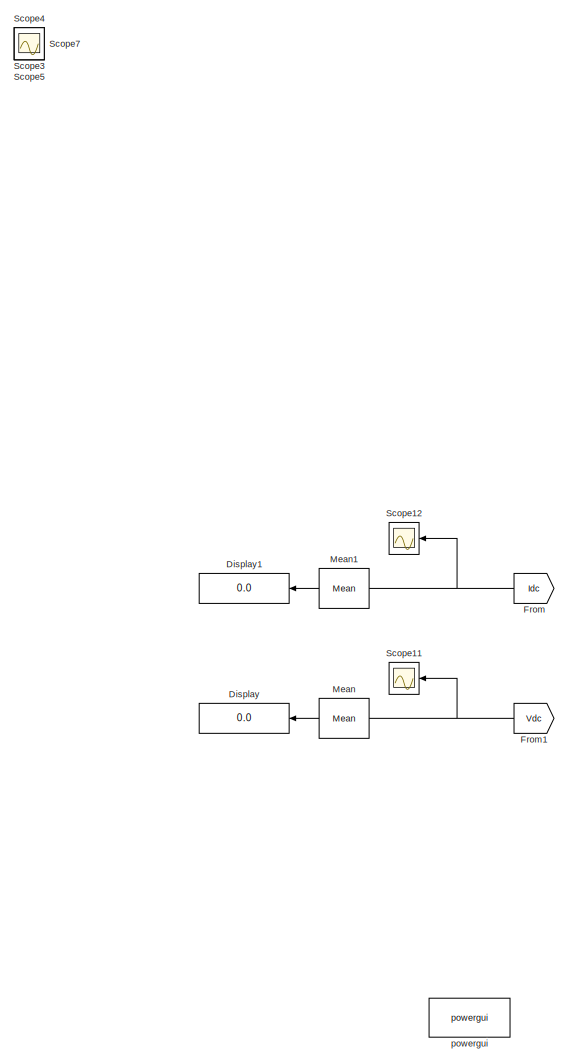
[diagram: root canvas - part 1/2, left side, full height]
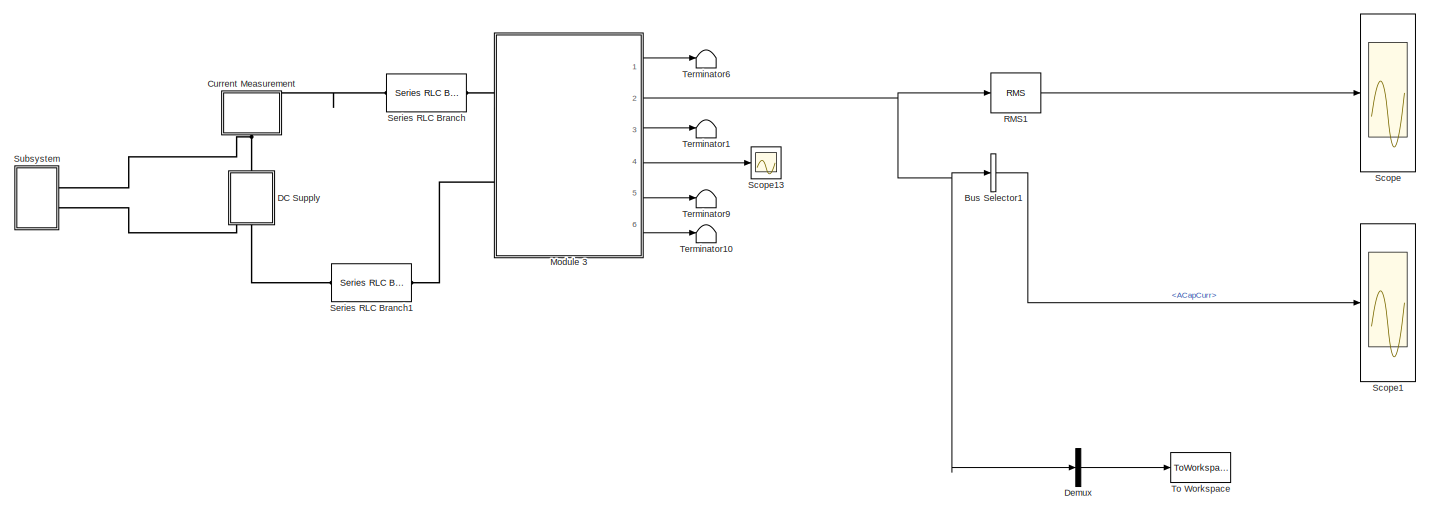
[diagram: root canvas - part 2/2, bottom center region]
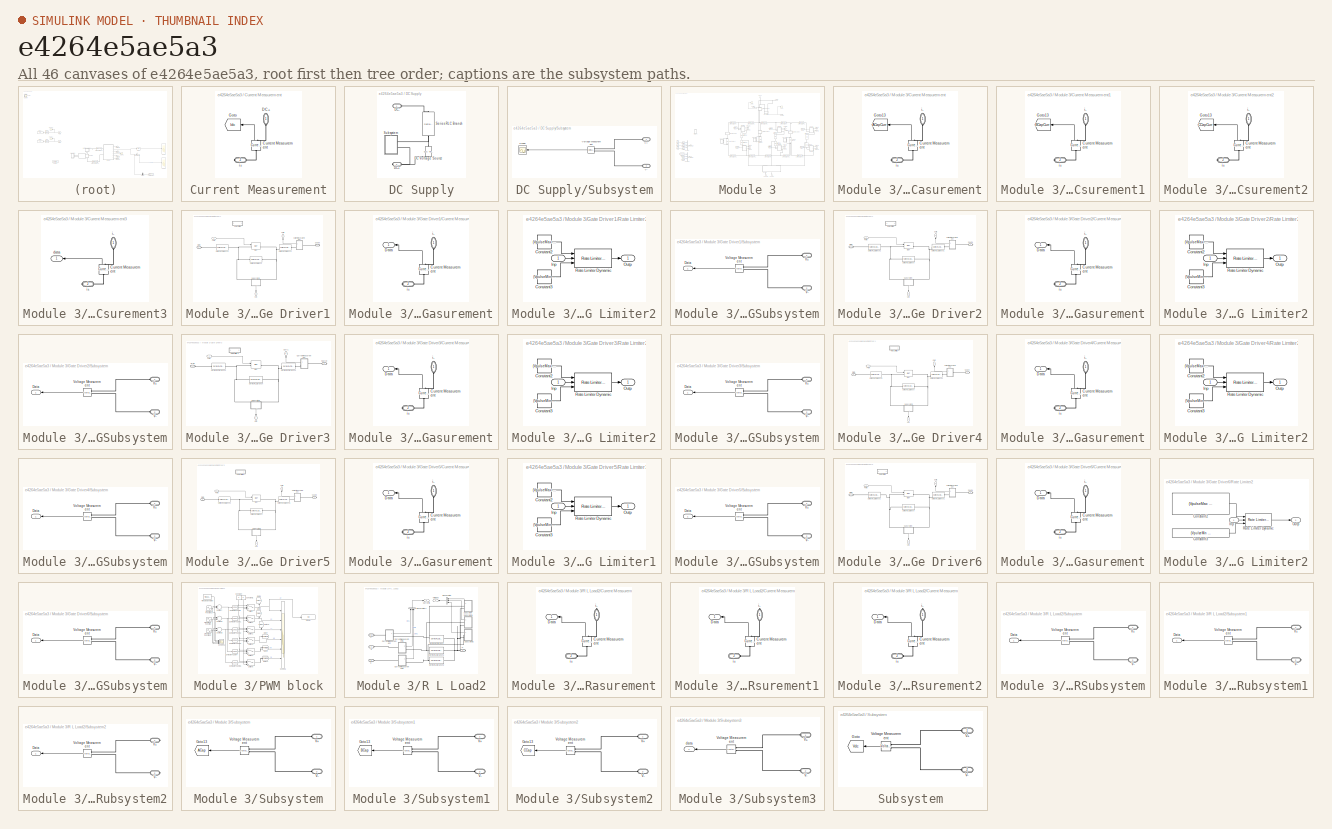
[diagram: thumbnail index - all 46 canvases of the model, root first then tree order]
MODEL slx_e4264e5ae5a3
KIND model
CONFIG AbsTol = auto
CONFIG EnableMultiTasking = off
CONFIG FixedStep = SampleTime*1e-2
CONFIG MaxStep = auto
CONFIG MinStep = SampleTime*1e-2
CONFIG RelTol = 1e-3
CONFIG SampleTimeConstraint = Unconstrained
CONFIG Solver = VariableStepAuto
CONFIG SolverName = VariableStepAuto
CONFIG StartTime = 0.0
CONFIG StopTime = Tfinal
BLOCK [BusSelector] Bus Selector1
  OutputAsBus = off
  OutputSignals = ACapCurr
  Ports = [1, 1]
BLOCK [SubSystem] Current Measurement
  Ports = [0, 0, 0, 0, 0, 1, 1]
  RequestExecContextInheritance = off
BLOCK [Reference] Current Measurement/Current Measurement  REF=powerlib/Measurements/Current Measurement
  Ports = [0, 1, 0, 0, 0, 1, 1]
  SourceBlock = powerlib/Measurements/Current Measurement
  SourceProductBaseCode = PS
  SourceProductName = Simscape Power Systems
  SourceType = Current Measurement
  UserDataPersistent = on
BLOCK [PMIOPort] Current Measurement/DC+
  Side = Left
BLOCK [Goto] Current Measurement/Goto
  GotoTag = Idc
  TagVisibility = global
BLOCK [PMIOPort] Current Measurement/i+
  Port = 2
  Side = Right
BLOCK [SubSystem] DC Supply
  Ports = [0, 0, 0, 0, 0, 1, 1]
  RequestExecContextInheritance = off
BLOCK [Reference] DC Supply/DC Voltage Source  REF=powerlib/Electrical
Sources/DC Voltage Source
  Ports = [0, 0, 0, 0, 0, 1, 1]
  SourceBlock = powerlib/Electrical\nSources/DC Voltage Source
  SourceProductBaseCode = PS
  SourceProductName = Simscape Power Systems
  SourceType = DC Voltage Source
BLOCK [PMIOPort] DC Supply/DC+
  Port = 2
  Side = Right
BLOCK [PMIOPort] DC Supply/DC-
  Side = Left
BLOCK [Reference] DC Supply/Series RLC Branch  REF=powerlib/Elements/Series RLC Branch
  Ports = [0, 0, 0, 0, 0, 1, 1]
  SourceBlock = powerlib/Elements/Series RLC Branch
  SourceProductBaseCode = PS
  SourceProductName = Simscape Power Systems
  SourceType = Series RLC Branch
BLOCK [SubSystem] DC Supply/Subsystem
  Ports = [0, 0, 0, 0, 0, 2]
  RequestExecContextInheritance = off
BLOCK [Scope] DC Supply/Subsystem/Scope
  Floating = off
  NumInputPorts = 1
  Ports = [1]
  ScopeSpecificationString = Simulink.scopes.TimeScopeBlockCfg('CurrentConfiguration', extmgr.ConfigurationSet(extmgr.Configuration('Core','General UI',true),extmgr.Configuration('Core','Source UI',true),extmgr.Configuration('Sources','WiredSimulink',true,'DataLoggingVariableName','ScopeData3'),extmgr.Configuration('Visuals','Time Domain',true,'SerializedDisplays',{struct('MinYLimReal','-600.00000','MaxYLimReal','-400.00000',...<+1394ch>
BLOCK [PMIOPort] DC Supply/Subsystem/V+
  Side = Left
BLOCK [PMIOPort] DC Supply/Subsystem/V-
  Port = 2
  Side = Left
BLOCK [Reference] DC Supply/Subsystem/Voltage Measurement  REF=powerlib/Measurements/Voltage Measurement
  Ports = [0, 1, 0, 0, 0, 2]
  SourceBlock = powerlib/Measurements/Voltage Measurement
  SourceProductBaseCode = PS
  SourceProductName = Simscape Power Systems
  SourceType = Voltage Measurement
  UserDataPersistent = on
BLOCK [Demux] Demux
  DisplayOption = bar
  Outputs = 3
  Ports = [1, 3]
BLOCK [Display] Display
  Decimation = 1
  Ports = [1]
BLOCK [Display] Display1
  Decimation = 1
  Ports = [1]
BLOCK [From] From
  GotoTag = Idc
  TagVisibility = global
BLOCK [From] From1
  GotoTag = Vdc
  TagVisibility = global
BLOCK [Reference] Mean  REF=powerlib_meascontrol/Measurements/Mean
  Ports = [1, 1]
  SourceBlock = powerlib_meascontrol/Measurements/Mean
  SourceProductBaseCode = PS
  SourceProductName = Simscape Power Systems
  SourceType = Mean
BLOCK [Reference] Mean1  REF=powerlib_meascontrol/Measurements/Mean
  Ports = [1, 1]
  SourceBlock = powerlib_meascontrol/Measurements/Mean
  SourceProductBaseCode = PS
  SourceProductName = Simscape Power Systems
  SourceType = Mean
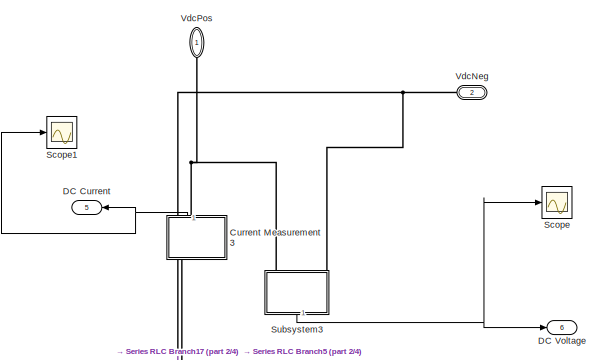
[diagram: Module 3 - part 1/4, top center region]
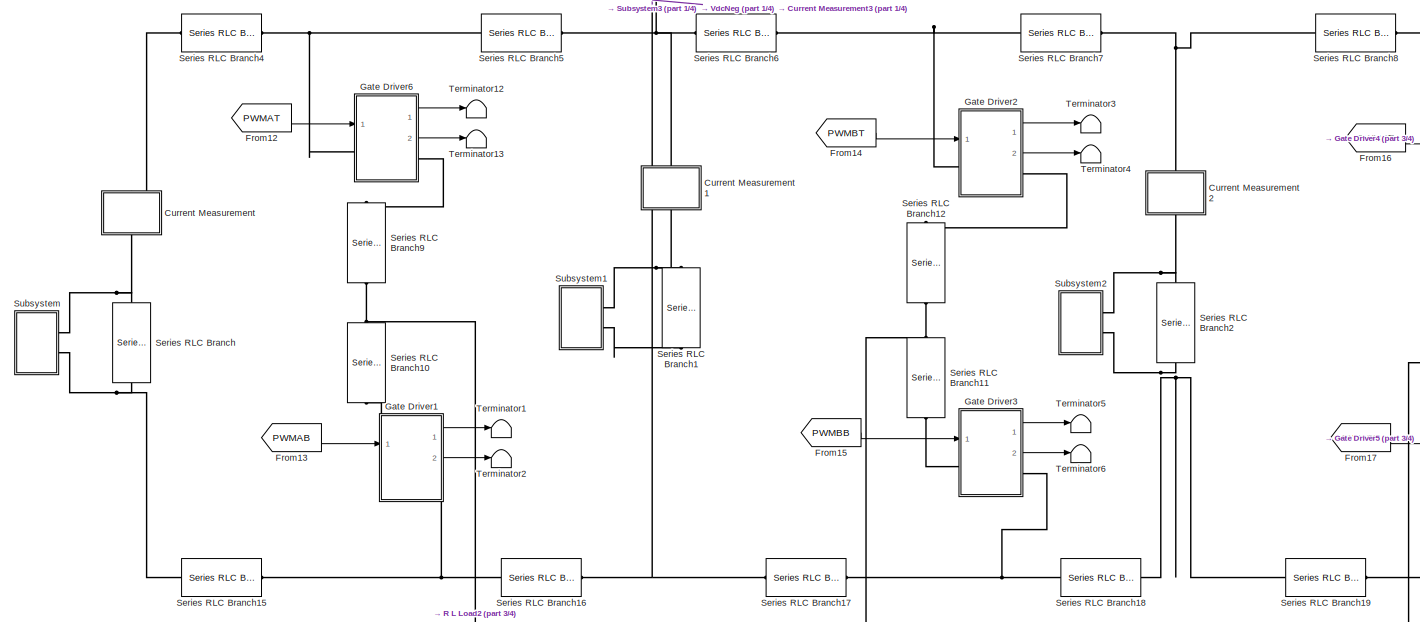
[diagram: Module 3 - part 2/4, central region]
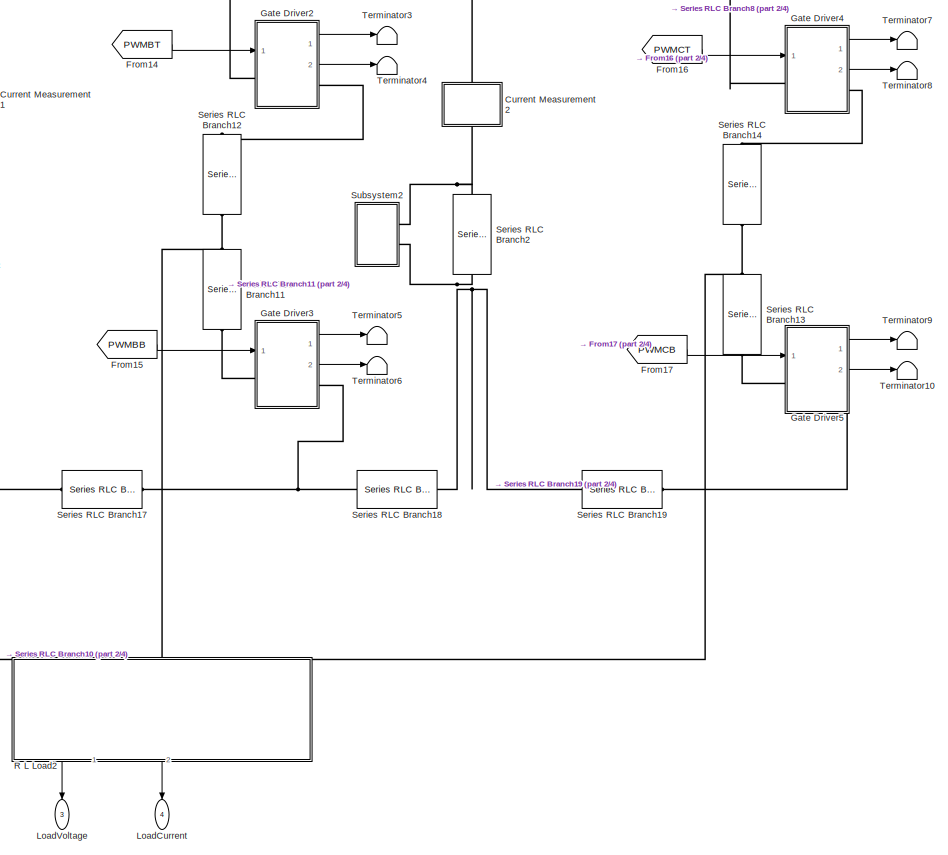
[diagram: Module 3 - part 3/4, bottom right region]
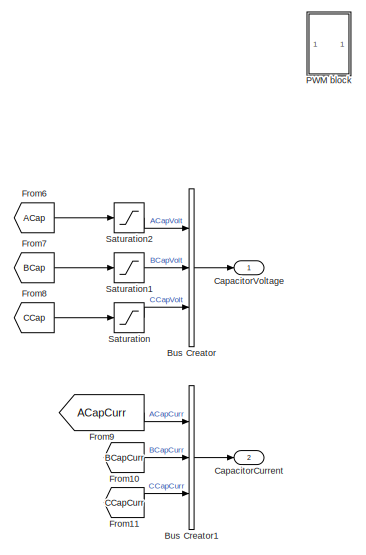
[diagram: Module 3 - part 4/4, middle left region]
BLOCK [SubSystem] Module 3
  Ports = [0, 6, 0, 0, 0, 2]
  RequestExecContextInheritance = off
BLOCK [BusCreator] Module 3/Bus Creator
  DisplayOption = bar
  InheritFromInputs = on
  Inputs = 3
  Ports = [3, 1]
BLOCK [BusCreator] Module 3/Bus Creator1
  DisplayOption = bar
  InheritFromInputs = on
  Inputs = 3
  Ports = [3, 1]
BLOCK [Outport] Module 3/CapacitorCurrent
  IconDisplay = Port number
  Port = 2
BLOCK [Outport] Module 3/CapacitorVoltage
  IconDisplay = Port number
BLOCK [SubSystem] Module 3/Current Measurement
  Ports = [0, 0, 0, 0, 0, 1, 1]
  RequestExecContextInheritance = off
BLOCK [Reference] Module 3/Current Measurement/Current Measurement  REF=powerlib/Measurements/Current Measurement
  Ports = [0, 1, 0, 0, 0, 1, 1]
  SourceBlock = powerlib/Measurements/Current Measurement
  SourceProductBaseCode = PS
  SourceProductName = Simscape Power Systems
  SourceType = Current Measurement
  UserDataPersistent = on
BLOCK [Goto] Module 3/Current Measurement/Goto13
  GotoTag = ACapCurr
  TagVisibility = global
BLOCK [PMIOPort] Module 3/Current Measurement/i+
  Port = 2
  Side = Right
BLOCK [PMIOPort] Module 3/Current Measurement/i-
  Side = Left
BLOCK [SubSystem] Module 3/Current Measurement1
  Ports = [0, 0, 0, 0, 0, 1, 1]
  RequestExecContextInheritance = off
BLOCK [Reference] Module 3/Current Measurement1/Current Measurement  REF=powerlib/Measurements/Current Measurement
  Ports = [0, 1, 0, 0, 0, 1, 1]
  SourceBlock = powerlib/Measurements/Current Measurement
  SourceProductBaseCode = PS
  SourceProductName = Simscape Power Systems
  SourceType = Current Measurement
  UserDataPersistent = on
BLOCK [Goto] Module 3/Current Measurement1/Goto13
  GotoTag = BCapCurr
  TagVisibility = global
BLOCK [PMIOPort] Module 3/Current Measurement1/i+
  Port = 2
  Side = Right
BLOCK [PMIOPort] Module 3/Current Measurement1/i-
  Side = Left
BLOCK [SubSystem] Module 3/Current Measurement2
  Ports = [0, 0, 0, 0, 0, 1, 1]
  RequestExecContextInheritance = off
BLOCK [Reference] Module 3/Current Measurement2/Current Measurement  REF=powerlib/Measurements/Current Measurement
  Ports = [0, 1, 0, 0, 0, 1, 1]
  SourceBlock = powerlib/Measurements/Current Measurement
  SourceProductBaseCode = PS
  SourceProductName = Simscape Power Systems
  SourceType = Current Measurement
  UserDataPersistent = on
BLOCK [Goto] Module 3/Current Measurement2/Goto13
  GotoTag = CCapCurr
  TagVisibility = global
BLOCK [PMIOPort] Module 3/Current Measurement2/i+
  Port = 2
  Side = Right
BLOCK [PMIOPort] Module 3/Current Measurement2/i-
  Side = Left
BLOCK [SubSystem] Module 3/Current Measurement3
  Ports = [0, 1, 0, 0, 0, 1, 1]
  RequestExecContextInheritance = off
BLOCK [Reference] Module 3/Current Measurement3/Current Measurement  REF=powerlib/Measurements/Current Measurement
  Ports = [0, 1, 0, 0, 0, 1, 1]
  SourceBlock = powerlib/Measurements/Current Measurement
  SourceProductBaseCode = PS
  SourceProductName = Simscape Power Systems
  SourceType = Current Measurement
  UserDataPersistent = on
BLOCK [Outport] Module 3/Current Measurement3/data
  IconDisplay = Port number
BLOCK [PMIOPort] Module 3/Current Measurement3/i+
  Port = 2
  Side = Right
BLOCK [PMIOPort] Module 3/Current Measurement3/i-
  Side = Left
BLOCK [Outport] Module 3/DC Current
  IconDisplay = Port number
  Port = 5
BLOCK [Outport] Module 3/DC Voltage
  IconDisplay = Port number
  Port = 6
BLOCK [From] Module 3/From10
  GotoTag = BCapCurr
  TagVisibility = global
BLOCK [From] Module 3/From11
  GotoTag = CCapCurr
  TagVisibility = global
BLOCK [From] Module 3/From12
  GotoTag = PWMAT
  TagVisibility = global
BLOCK [From] Module 3/From13
  GotoTag = PWMAB
  TagVisibility = global
BLOCK [From] Module 3/From14
  GotoTag = PWMBT
  TagVisibility = global
BLOCK [From] Module 3/From15
  GotoTag = PWMBB
  TagVisibility = global
BLOCK [From] Module 3/From16
  GotoTag = PWMCT
  TagVisibility = global
BLOCK [From] Module 3/From17
  GotoTag = PWMCB
  TagVisibility = global
BLOCK [From] Module 3/From6
  GotoTag = ACap
  TagVisibility = global
BLOCK [From] Module 3/From7
  GotoTag = BCap
  TagVisibility = global
BLOCK [From] Module 3/From8
  GotoTag = CCap
  TagVisibility = global
BLOCK [From] Module 3/From9
  GotoTag = ACapCurr
  TagVisibility = global
BLOCK [SubSystem] Module 3/Gate Driver1
  Ports = [1, 2, 0, 0, 0, 1, 1]
  RequestExecContextInheritance = off
BLOCK [Outport] Module 3/Gate Driver1/Curr1
  IconDisplay = Port number
  Port = 2
BLOCK [SubSystem] Module 3/Gate Driver1/Current Measurement
  Ports = [0, 1, 0, 0, 0, 1, 1]
  RequestExecContextInheritance = off
BLOCK [Reference] Module 3/Gate Driver1/Current Measurement/Current Measurement  REF=powerlib/Measurements/Current Measurement
  Ports = [0, 1, 0, 0, 0, 1, 1]
  SourceBlock = powerlib/Measurements/Current Measurement
  SourceProductBaseCode = PS
  SourceProductName = Simscape Power Systems
  SourceType = Current Measurement
  UserDataPersistent = on
BLOCK [Outport] Module 3/Gate Driver1/Current Measurement/Data
  IconDisplay = Port number
BLOCK [PMIOPort] Module 3/Gate Driver1/Current Measurement/i+
  Port = 2
  Side = Right
BLOCK [PMIOPort] Module 3/Gate Driver1/Current Measurement/i-
  Side = Left
BLOCK [PMIOPort] Module 3/Gate Driver1/Drain
  Port = 2
  Side = Left
BLOCK [Reference] Module 3/Gate Driver1/IGBT  REF=powerlib/Power
Electronics/IGBT
  Ports = [1, 1, 0, 0, 0, 1, 1]
  SourceBlock = powerlib/Power\nElectronics/IGBT
  SourceProductBaseCode = PS
  SourceProductName = Simscape Power Systems
  SourceType = IGBT
BLOCK [Inport] Module 3/Gate Driver1/PWM
  IconDisplay = Port number
BLOCK [SubSystem] Module 3/Gate Driver1/Rate Limiter2
  Ports = [1, 1]
  RequestExecContextInheritance = off
BLOCK [Constant] Module 3/Gate Driver1/Rate Limiter2/Constant2
  Value = (VpulseMax - VpulseMin)/1e-9
BLOCK [Constant] Module 3/Gate Driver1/Rate Limiter2/Constant3
  Value = (VpulseMin - VpulseMax)/1e-9
BLOCK [Inport] Module 3/Gate Driver1/Rate Limiter2/Inp
  IconDisplay = Port number
BLOCK [Outport] Module 3/Gate Driver1/Rate Limiter2/Outp
  IconDisplay = Port number
BLOCK [Reference] Module 3/Gate Driver1/Rate Limiter2/Rate Limiter Dynamic  REF=simulink/Discontinuities/Rate Limiter
Dynamic
  Ports = [3, 1]
  SourceBlock = simulink/Discontinuities/Rate Limiter\nDynamic
  SourceProductBaseCode = SL
  SourceProductName = Simulink
  SourceType = Rate Limiter Dynamic
BLOCK [Reference] Module 3/Gate Driver1/Series RLC Branch  REF=powerlib/Elements/Series RLC Branch
  Ports = [0, 0, 0, 0, 0, 1, 1]
  SourceBlock = powerlib/Elements/Series RLC Branch
  SourceProductBaseCode = PS
  SourceProductName = Simscape Power Systems
  SourceType = Series RLC Branch
BLOCK [Reference] Module 3/Gate Driver1/Series RLC Branch1  REF=powerlib/Elements/Series RLC Branch
  Ports = [0, 0, 0, 0, 0, 1, 1]
  SourceBlock = powerlib/Elements/Series RLC Branch
  SourceProductBaseCode = PS
  SourceProductName = Simscape Power Systems
  SourceType = Series RLC Branch
BLOCK [Reference] Module 3/Gate Driver1/Series RLC Branch2  REF=powerlib/Elements/Series RLC Branch
  Ports = [0, 0, 0, 0, 0, 1, 1]
  SourceBlock = powerlib/Elements/Series RLC Branch
  SourceProductBaseCode = PS
  SourceProductName = Simscape Power Systems
  SourceType = Series RLC Branch
BLOCK [PMIOPort] Module 3/Gate Driver1/Source
  Side = Right
BLOCK [SubSystem] Module 3/Gate Driver1/Subsystem
  Ports = [0, 1, 0, 0, 0, 2]
  RequestExecContextInheritance = off
BLOCK [Outport] Module 3/Gate Driver1/Subsystem/Data
  IconDisplay = Port number
BLOCK [PMIOPort] Module 3/Gate Driver1/Subsystem/V+
  Side = Left
BLOCK [PMIOPort] Module 3/Gate Driver1/Subsystem/V-
  Port = 2
  Side = Left
BLOCK [Reference] Module 3/Gate Driver1/Subsystem/Voltage Measurement  REF=powerlib/Measurements/Voltage Measurement
  Ports = [0, 1, 0, 0, 0, 2]
  SourceBlock = powerlib/Measurements/Voltage Measurement
  SourceProductBaseCode = PS
  SourceProductName = Simscape Power Systems
  SourceType = Voltage Measurement
  UserDataPersistent = on
BLOCK [Outport] Module 3/Gate Driver1/Volt
  IconDisplay = Port number
BLOCK [SubSystem] Module 3/Gate Driver2
  Ports = [1, 2, 0, 0, 0, 1, 1]
  RequestExecContextInheritance = off
BLOCK [Outport] Module 3/Gate Driver2/Curr1
  IconDisplay = Port number
  Port = 2
BLOCK [SubSystem] Module 3/Gate Driver2/Current Measurement
  Ports = [0, 1, 0, 0, 0, 1, 1]
  RequestExecContextInheritance = off
BLOCK [Reference] Module 3/Gate Driver2/Current Measurement/Current Measurement  REF=powerlib/Measurements/Current Measurement
  Ports = [0, 1, 0, 0, 0, 1, 1]
  SourceBlock = powerlib/Measurements/Current Measurement
  SourceProductBaseCode = PS
  SourceProductName = Simscape Power Systems
  SourceType = Current Measurement
  UserDataPersistent = on
BLOCK [Outport] Module 3/Gate Driver2/Current Measurement/Data
  IconDisplay = Port number
BLOCK [PMIOPort] Module 3/Gate Driver2/Current Measurement/i+
  Port = 2
  Side = Right
BLOCK [PMIOPort] Module 3/Gate Driver2/Current Measurement/i-
  Side = Left
BLOCK [PMIOPort] Module 3/Gate Driver2/Drain
  Port = 2
  Side = Left
BLOCK [Reference] Module 3/Gate Driver2/IGBT  REF=powerlib/Power
Electronics/IGBT
  Ports = [1, 1, 0, 0, 0, 1, 1]
  SourceBlock = powerlib/Power\nElectronics/IGBT
  SourceProductBaseCode = PS
  SourceProductName = Simscape Power Systems
  SourceType = IGBT
BLOCK [Inport] Module 3/Gate Driver2/PWM
  IconDisplay = Port number
BLOCK [SubSystem] Module 3/Gate Driver2/Rate Limiter2
  Ports = [1, 1]
  RequestExecContextInheritance = off
BLOCK [Constant] Module 3/Gate Driver2/Rate Limiter2/Constant2
  Value = (VpulseMax - VpulseMin)/1e-9
BLOCK [Constant] Module 3/Gate Driver2/Rate Limiter2/Constant3
  Value = (VpulseMin - VpulseMax)/1e-9
BLOCK [Inport] Module 3/Gate Driver2/Rate Limiter2/Inp
  IconDisplay = Port number
BLOCK [Outport] Module 3/Gate Driver2/Rate Limiter2/Outp
  IconDisplay = Port number
BLOCK [Reference] Module 3/Gate Driver2/Rate Limiter2/Rate Limiter Dynamic  REF=simulink/Discontinuities/Rate Limiter
Dynamic
  Ports = [3, 1]
  SourceBlock = simulink/Discontinuities/Rate Limiter\nDynamic
  SourceProductBaseCode = SL
  SourceProductName = Simulink
  SourceType = Rate Limiter Dynamic
BLOCK [Reference] Module 3/Gate Driver2/Series RLC Branch  REF=powerlib/Elements/Series RLC Branch
  Ports = [0, 0, 0, 0, 0, 1, 1]
  SourceBlock = powerlib/Elements/Series RLC Branch
  SourceProductBaseCode = PS
  SourceProductName = Simscape Power Systems
  SourceType = Series RLC Branch
BLOCK [Reference] Module 3/Gate Driver2/Series RLC Branch1  REF=powerlib/Elements/Series RLC Branch
  Ports = [0, 0, 0, 0, 0, 1, 1]
  SourceBlock = powerlib/Elements/Series RLC Branch
  SourceProductBaseCode = PS
  SourceProductName = Simscape Power Systems
  SourceType = Series RLC Branch
BLOCK [Reference] Module 3/Gate Driver2/Series RLC Branch2  REF=powerlib/Elements/Series RLC Branch
  Ports = [0, 0, 0, 0, 0, 1, 1]
  SourceBlock = powerlib/Elements/Series RLC Branch
  SourceProductBaseCode = PS
  SourceProductName = Simscape Power Systems
  SourceType = Series RLC Branch
BLOCK [PMIOPort] Module 3/Gate Driver2/Source
  Side = Right
BLOCK [SubSystem] Module 3/Gate Driver2/Subsystem
  Ports = [0, 1, 0, 0, 0, 2]
  RequestExecContextInheritance = off
BLOCK [Outport] Module 3/Gate Driver2/Subsystem/Data
  IconDisplay = Port number
BLOCK [PMIOPort] Module 3/Gate Driver2/Subsystem/V+
  Side = Left
BLOCK [PMIOPort] Module 3/Gate Driver2/Subsystem/V-
  Port = 2
  Side = Left
BLOCK [Reference] Module 3/Gate Driver2/Subsystem/Voltage Measurement  REF=powerlib/Measurements/Voltage Measurement
  Ports = [0, 1, 0, 0, 0, 2]
  SourceBlock = powerlib/Measurements/Voltage Measurement
  SourceProductBaseCode = PS
  SourceProductName = Simscape Power Systems
  SourceType = Voltage Measurement
  UserDataPersistent = on
BLOCK [Outport] Module 3/Gate Driver2/Volt
  IconDisplay = Port number
BLOCK [SubSystem] Module 3/Gate Driver3
  Ports = [1, 2, 0, 0, 0, 1, 1]
  RequestExecContextInheritance = off
BLOCK [Outport] Module 3/Gate Driver3/Curr1
  IconDisplay = Port number
  Port = 2
BLOCK [SubSystem] Module 3/Gate Driver3/Current Measurement
  Ports = [0, 1, 0, 0, 0, 1, 1]
  RequestExecContextInheritance = off
BLOCK [Reference] Module 3/Gate Driver3/Current Measurement/Current Measurement  REF=powerlib/Measurements/Current Measurement
  Ports = [0, 1, 0, 0, 0, 1, 1]
  SourceBlock = powerlib/Measurements/Current Measurement
  SourceProductBaseCode = PS
  SourceProductName = Simscape Power Systems
  SourceType = Current Measurement
  UserDataPersistent = on
BLOCK [Outport] Module 3/Gate Driver3/Current Measurement/Data
  IconDisplay = Port number
BLOCK [PMIOPort] Module 3/Gate Driver3/Current Measurement/i+
  Port = 2
  Side = Right
BLOCK [PMIOPort] Module 3/Gate Driver3/Current Measurement/i-
  Side = Left
BLOCK [PMIOPort] Module 3/Gate Driver3/Drain
  Port = 2
  Side = Left
BLOCK [Reference] Module 3/Gate Driver3/IGBT  REF=powerlib/Power
Electronics/IGBT
  Ports = [1, 1, 0, 0, 0, 1, 1]
  SourceBlock = powerlib/Power\nElectronics/IGBT
  SourceProductBaseCode = PS
  SourceProductName = Simscape Power Systems
  SourceType = IGBT
BLOCK [Inport] Module 3/Gate Driver3/PWM
  IconDisplay = Port number
BLOCK [SubSystem] Module 3/Gate Driver3/Rate Limiter2
  Ports = [1, 1]
  RequestExecContextInheritance = off
BLOCK [Constant] Module 3/Gate Driver3/Rate Limiter2/Constant2
  Value = (VpulseMax - VpulseMin)/1e-9
BLOCK [Constant] Module 3/Gate Driver3/Rate Limiter2/Constant3
  Value = (VpulseMin - VpulseMax)/1e-9
BLOCK [Inport] Module 3/Gate Driver3/Rate Limiter2/Inp
  IconDisplay = Port number
BLOCK [Outport] Module 3/Gate Driver3/Rate Limiter2/Outp
  IconDisplay = Port number
BLOCK [Reference] Module 3/Gate Driver3/Rate Limiter2/Rate Limiter Dynamic  REF=simulink/Discontinuities/Rate Limiter
Dynamic
  Ports = [3, 1]
  SourceBlock = simulink/Discontinuities/Rate Limiter\nDynamic
  SourceProductBaseCode = SL
  SourceProductName = Simulink
  SourceType = Rate Limiter Dynamic
BLOCK [Reference] Module 3/Gate Driver3/Series RLC Branch  REF=powerlib/Elements/Series RLC Branch
  Ports = [0, 0, 0, 0, 0, 1, 1]
  SourceBlock = powerlib/Elements/Series RLC Branch
  SourceProductBaseCode = PS
  SourceProductName = Simscape Power Systems
  SourceType = Series RLC Branch
BLOCK [Reference] Module 3/Gate Driver3/Series RLC Branch1  REF=powerlib/Elements/Series RLC Branch
  Ports = [0, 0, 0, 0, 0, 1, 1]
  SourceBlock = powerlib/Elements/Series RLC Branch
  SourceProductBaseCode = PS
  SourceProductName = Simscape Power Systems
  SourceType = Series RLC Branch
BLOCK [Reference] Module 3/Gate Driver3/Series RLC Branch2  REF=powerlib/Elements/Series RLC Branch
  Ports = [0, 0, 0, 0, 0, 1, 1]
  SourceBlock = powerlib/Elements/Series RLC Branch
  SourceProductBaseCode = PS
  SourceProductName = Simscape Power Systems
  SourceType = Series RLC Branch
BLOCK [PMIOPort] Module 3/Gate Driver3/Source
  Side = Right
BLOCK [SubSystem] Module 3/Gate Driver3/Subsystem
  Ports = [0, 1, 0, 0, 0, 2]
  RequestExecContextInheritance = off
BLOCK [Outport] Module 3/Gate Driver3/Subsystem/Data
  IconDisplay = Port number
BLOCK [PMIOPort] Module 3/Gate Driver3/Subsystem/V+
  Side = Left
BLOCK [PMIOPort] Module 3/Gate Driver3/Subsystem/V-
  Port = 2
  Side = Left
BLOCK [Reference] Module 3/Gate Driver3/Subsystem/Voltage Measurement  REF=powerlib/Measurements/Voltage Measurement
  Ports = [0, 1, 0, 0, 0, 2]
  SourceBlock = powerlib/Measurements/Voltage Measurement
  SourceProductBaseCode = PS
  SourceProductName = Simscape Power Systems
  SourceType = Voltage Measurement
  UserDataPersistent = on
BLOCK [Outport] Module 3/Gate Driver3/Volt
  IconDisplay = Port number
BLOCK [SubSystem] Module 3/Gate Driver4
  Ports = [1, 2, 0, 0, 0, 1, 1]
  RequestExecContextInheritance = off
BLOCK [Outport] Module 3/Gate Driver4/Curr1
  IconDisplay = Port number
  Port = 2
BLOCK [SubSystem] Module 3/Gate Driver4/Current Measurement
  Ports = [0, 1, 0, 0, 0, 1, 1]
  RequestExecContextInheritance = off
BLOCK [Reference] Module 3/Gate Driver4/Current Measurement/Current Measurement  REF=powerlib/Measurements/Current Measurement
  Ports = [0, 1, 0, 0, 0, 1, 1]
  SourceBlock = powerlib/Measurements/Current Measurement
  SourceProductBaseCode = PS
  SourceProductName = Simscape Power Systems
  SourceType = Current Measurement
  UserDataPersistent = on
BLOCK [Outport] Module 3/Gate Driver4/Current Measurement/Data
  IconDisplay = Port number
BLOCK [PMIOPort] Module 3/Gate Driver4/Current Measurement/i+
  Port = 2
  Side = Right
BLOCK [PMIOPort] Module 3/Gate Driver4/Current Measurement/i-
  Side = Left
BLOCK [PMIOPort] Module 3/Gate Driver4/Drain
  Port = 2
  Side = Left
BLOCK [Reference] Module 3/Gate Driver4/IGBT  REF=powerlib/Power
Electronics/IGBT
  Ports = [1, 1, 0, 0, 0, 1, 1]
  SourceBlock = powerlib/Power\nElectronics/IGBT
  SourceProductBaseCode = PS
  SourceProductName = Simscape Power Systems
  SourceType = IGBT
BLOCK [Inport] Module 3/Gate Driver4/PWM
  IconDisplay = Port number
BLOCK [SubSystem] Module 3/Gate Driver4/Rate Limiter2
  Ports = [1, 1]
  RequestExecContextInheritance = off
BLOCK [Constant] Module 3/Gate Driver4/Rate Limiter2/Constant2
  Value = (VpulseMax - VpulseMin)/1e-9
BLOCK [Constant] Module 3/Gate Driver4/Rate Limiter2/Constant3
  Value = (VpulseMin - VpulseMax)/1e-9
BLOCK [Inport] Module 3/Gate Driver4/Rate Limiter2/Inp
  IconDisplay = Port number
BLOCK [Outport] Module 3/Gate Driver4/Rate Limiter2/Outp
  IconDisplay = Port number
BLOCK [Reference] Module 3/Gate Driver4/Rate Limiter2/Rate Limiter Dynamic  REF=simulink/Discontinuities/Rate Limiter
Dynamic
  Ports = [3, 1]
  SourceBlock = simulink/Discontinuities/Rate Limiter\nDynamic
  SourceProductBaseCode = SL
  SourceProductName = Simulink
  SourceType = Rate Limiter Dynamic
BLOCK [Reference] Module 3/Gate Driver4/Series RLC Branch  REF=powerlib/Elements/Series RLC Branch
  Ports = [0, 0, 0, 0, 0, 1, 1]
  SourceBlock = powerlib/Elements/Series RLC Branch
  SourceProductBaseCode = PS
  SourceProductName = Simscape Power Systems
  SourceType = Series RLC Branch
BLOCK [Reference] Module 3/Gate Driver4/Series RLC Branch1  REF=powerlib/Elements/Series RLC Branch
  Ports = [0, 0, 0, 0, 0, 1, 1]
  SourceBlock = powerlib/Elements/Series RLC Branch
  SourceProductBaseCode = PS
  SourceProductName = Simscape Power Systems
  SourceType = Series RLC Branch
BLOCK [Reference] Module 3/Gate Driver4/Series RLC Branch2  REF=powerlib/Elements/Series RLC Branch
  Ports = [0, 0, 0, 0, 0, 1, 1]
  SourceBlock = powerlib/Elements/Series RLC Branch
  SourceProductBaseCode = PS
  SourceProductName = Simscape Power Systems
  SourceType = Series RLC Branch
BLOCK [PMIOPort] Module 3/Gate Driver4/Source
  Side = Right
BLOCK [SubSystem] Module 3/Gate Driver4/Subsystem
  Ports = [0, 1, 0, 0, 0, 2]
  RequestExecContextInheritance = off
BLOCK [Outport] Module 3/Gate Driver4/Subsystem/Data
  IconDisplay = Port number
BLOCK [PMIOPort] Module 3/Gate Driver4/Subsystem/V+
  Side = Left
BLOCK [PMIOPort] Module 3/Gate Driver4/Subsystem/V-
  Port = 2
  Side = Left
BLOCK [Reference] Module 3/Gate Driver4/Subsystem/Voltage Measurement  REF=powerlib/Measurements/Voltage Measurement
  Ports = [0, 1, 0, 0, 0, 2]
  SourceBlock = powerlib/Measurements/Voltage Measurement
  SourceProductBaseCode = PS
  SourceProductName = Simscape Power Systems
  SourceType = Voltage Measurement
  UserDataPersistent = on
BLOCK [Outport] Module 3/Gate Driver4/Volt
  IconDisplay = Port number
BLOCK [SubSystem] Module 3/Gate Driver5
  Ports = [1, 2, 0, 0, 0, 1, 1]
  RequestExecContextInheritance = off
BLOCK [Outport] Module 3/Gate Driver5/Curr1
  IconDisplay = Port number
  Port = 2
BLOCK [SubSystem] Module 3/Gate Driver5/Current Measurement
  Ports = [0, 1, 0, 0, 0, 1, 1]
  RequestExecContextInheritance = off
BLOCK [Reference] Module 3/Gate Driver5/Current Measurement/Current Measurement  REF=powerlib/Measurements/Current Measurement
  Ports = [0, 1, 0, 0, 0, 1, 1]
  SourceBlock = powerlib/Measurements/Current Measurement
  SourceProductBaseCode = PS
  SourceProductName = Simscape Power Systems
  SourceType = Current Measurement
  UserDataPersistent = on
BLOCK [Outport] Module 3/Gate Driver5/Current Measurement/Data
  IconDisplay = Port number
BLOCK [PMIOPort] Module 3/Gate Driver5/Current Measurement/i+
  Port = 2
  Side = Right
BLOCK [PMIOPort] Module 3/Gate Driver5/Current Measurement/i-
  Side = Left
BLOCK [PMIOPort] Module 3/Gate Driver5/Drain
  Port = 2
  Side = Left
BLOCK [Reference] Module 3/Gate Driver5/IGBT  REF=powerlib/Power
Electronics/IGBT
  Ports = [1, 1, 0, 0, 0, 1, 1]
  SourceBlock = powerlib/Power\nElectronics/IGBT
  SourceProductBaseCode = PS
  SourceProductName = Simscape Power Systems
  SourceType = IGBT
BLOCK [Inport] Module 3/Gate Driver5/PWM
  IconDisplay = Port number
BLOCK [SubSystem] Module 3/Gate Driver5/Rate Limiter1
  Ports = [1, 1]
  RequestExecContextInheritance = off
BLOCK [Constant] Module 3/Gate Driver5/Rate Limiter1/Constant2
  Value = (VpulseMax - VpulseMin)/1e-9
BLOCK [Constant] Module 3/Gate Driver5/Rate Limiter1/Constant3
  Value = (VpulseMin - VpulseMax)/1e-9
BLOCK [Inport] Module 3/Gate Driver5/Rate Limiter1/Inp
  IconDisplay = Port number
BLOCK [Outport] Module 3/Gate Driver5/Rate Limiter1/Outp
  IconDisplay = Port number
BLOCK [Reference] Module 3/Gate Driver5/Rate Limiter1/Rate Limiter Dynamic  REF=simulink/Discontinuities/Rate Limiter
Dynamic
  Ports = [3, 1]
  SourceBlock = simulink/Discontinuities/Rate Limiter\nDynamic
  SourceProductBaseCode = SL
  SourceProductName = Simulink
  SourceType = Rate Limiter Dynamic
BLOCK [Reference] Module 3/Gate Driver5/Series RLC Branch  REF=powerlib/Elements/Series RLC Branch
  Ports = [0, 0, 0, 0, 0, 1, 1]
  SourceBlock = powerlib/Elements/Series RLC Branch
  SourceProductBaseCode = PS
  SourceProductName = Simscape Power Systems
  SourceType = Series RLC Branch
BLOCK [Reference] Module 3/Gate Driver5/Series RLC Branch1  REF=powerlib/Elements/Series RLC Branch
  Ports = [0, 0, 0, 0, 0, 1, 1]
  SourceBlock = powerlib/Elements/Series RLC Branch
  SourceProductBaseCode = PS
  SourceProductName = Simscape Power Systems
  SourceType = Series RLC Branch
BLOCK [Reference] Module 3/Gate Driver5/Series RLC Branch2  REF=powerlib/Elements/Series RLC Branch
  Ports = [0, 0, 0, 0, 0, 1, 1]
  SourceBlock = powerlib/Elements/Series RLC Branch
  SourceProductBaseCode = PS
  SourceProductName = Simscape Power Systems
  SourceType = Series RLC Branch
BLOCK [PMIOPort] Module 3/Gate Driver5/Source
  Side = Right
BLOCK [SubSystem] Module 3/Gate Driver5/Subsystem
  Ports = [0, 1, 0, 0, 0, 2]
  RequestExecContextInheritance = off
BLOCK [Outport] Module 3/Gate Driver5/Subsystem/Data
  IconDisplay = Port number
BLOCK [PMIOPort] Module 3/Gate Driver5/Subsystem/V+
  Side = Left
BLOCK [PMIOPort] Module 3/Gate Driver5/Subsystem/V-
  Port = 2
  Side = Left
BLOCK [Reference] Module 3/Gate Driver5/Subsystem/Voltage Measurement  REF=powerlib/Measurements/Voltage Measurement
  Ports = [0, 1, 0, 0, 0, 2]
  SourceBlock = powerlib/Measurements/Voltage Measurement
  SourceProductBaseCode = PS
  SourceProductName = Simscape Power Systems
  SourceType = Voltage Measurement
  UserDataPersistent = on
BLOCK [Outport] Module 3/Gate Driver5/Volt
  IconDisplay = Port number
BLOCK [SubSystem] Module 3/Gate Driver6
  Ports = [1, 2, 0, 0, 0, 1, 1]
  RequestExecContextInheritance = off
BLOCK [Outport] Module 3/Gate Driver6/Curr1
  IconDisplay = Port number
  Port = 2
BLOCK [SubSystem] Module 3/Gate Driver6/Current Measurement
  Ports = [0, 1, 0, 0, 0, 1, 1]
  RequestExecContextInheritance = off
BLOCK [Reference] Module 3/Gate Driver6/Current Measurement/Current Measurement  REF=powerlib/Measurements/Current Measurement
  Ports = [0, 1, 0, 0, 0, 1, 1]
  SourceBlock = powerlib/Measurements/Current Measurement
  SourceProductBaseCode = PS
  SourceProductName = Simscape Power Systems
  SourceType = Current Measurement
  UserDataPersistent = on
BLOCK [Outport] Module 3/Gate Driver6/Current Measurement/Data
  IconDisplay = Port number
BLOCK [PMIOPort] Module 3/Gate Driver6/Current Measurement/i+
  Port = 2
  Side = Right
BLOCK [PMIOPort] Module 3/Gate Driver6/Current Measurement/i-
  Side = Left
BLOCK [PMIOPort] Module 3/Gate Driver6/Drain
  Port = 2
  Side = Left
BLOCK [Reference] Module 3/Gate Driver6/IGBT  REF=powerlib/Power
Electronics/IGBT
  Ports = [1, 1, 0, 0, 0, 1, 1]
  SourceBlock = powerlib/Power\nElectronics/IGBT
  SourceProductBaseCode = PS
  SourceProductName = Simscape Power Systems
  SourceType = IGBT
BLOCK [Inport] Module 3/Gate Driver6/PWM
  IconDisplay = Port number
BLOCK [SubSystem] Module 3/Gate Driver6/Rate Limiter2
  Ports = [1, 1]
  RequestExecContextInheritance = off
BLOCK [Constant] Module 3/Gate Driver6/Rate Limiter2/Constant2
  Value = (VpulseMax - VpulseMin)/1e-9
BLOCK [Constant] Module 3/Gate Driver6/Rate Limiter2/Constant3
  Value = (VpulseMin - VpulseMax)/1e-9
BLOCK [Inport] Module 3/Gate Driver6/Rate Limiter2/Inp
  IconDisplay = Port number
BLOCK [Outport] Module 3/Gate Driver6/Rate Limiter2/Outp
  IconDisplay = Port number
BLOCK [Reference] Module 3/Gate Driver6/Rate Limiter2/Rate Limiter Dynamic  REF=simulink/Discontinuities/Rate Limiter
Dynamic
  Ports = [3, 1]
  SourceBlock = simulink/Discontinuities/Rate Limiter\nDynamic
  SourceProductBaseCode = SL
  SourceProductName = Simulink
  SourceType = Rate Limiter Dynamic
BLOCK [Reference] Module 3/Gate Driver6/Series RLC Branch  REF=powerlib/Elements/Series RLC Branch
  Ports = [0, 0, 0, 0, 0, 1, 1]
  SourceBlock = powerlib/Elements/Series RLC Branch
  SourceProductBaseCode = PS
  SourceProductName = Simscape Power Systems
  SourceType = Series RLC Branch
BLOCK [Reference] Module 3/Gate Driver6/Series RLC Branch1  REF=powerlib/Elements/Series RLC Branch
  Ports = [0, 0, 0, 0, 0, 1, 1]
  SourceBlock = powerlib/Elements/Series RLC Branch
  SourceProductBaseCode = PS
  SourceProductName = Simscape Power Systems
  SourceType = Series RLC Branch
BLOCK [Reference] Module 3/Gate Driver6/Series RLC Branch2  REF=powerlib/Elements/Series RLC Branch
  Ports = [0, 0, 0, 0, 0, 1, 1]
  SourceBlock = powerlib/Elements/Series RLC Branch
  SourceProductBaseCode = PS
  SourceProductName = Simscape Power Systems
  SourceType = Series RLC Branch
BLOCK [PMIOPort] Module 3/Gate Driver6/Source
  Side = Right
BLOCK [SubSystem] Module 3/Gate Driver6/Subsystem
  Ports = [0, 1, 0, 0, 0, 2]
  RequestExecContextInheritance = off
BLOCK [Outport] Module 3/Gate Driver6/Subsystem/Data
  IconDisplay = Port number
BLOCK [PMIOPort] Module 3/Gate Driver6/Subsystem/V+
  Side = Left
BLOCK [PMIOPort] Module 3/Gate Driver6/Subsystem/V-
  Port = 2
  Side = Left
BLOCK [Reference] Module 3/Gate Driver6/Subsystem/Voltage Measurement  REF=powerlib/Measurements/Voltage Measurement
  Ports = [0, 1, 0, 0, 0, 2]
  SourceBlock = powerlib/Measurements/Voltage Measurement
  SourceProductBaseCode = PS
  SourceProductName = Simscape Power Systems
  SourceType = Voltage Measurement
  UserDataPersistent = on
BLOCK [Outport] Module 3/Gate Driver6/Volt
  IconDisplay = Port number
BLOCK [Outport] Module 3/LoadCurrent
  IconDisplay = Port number
  Port = 4
BLOCK [Outport] Module 3/LoadVoltage
  IconDisplay = Port number
  Port = 3
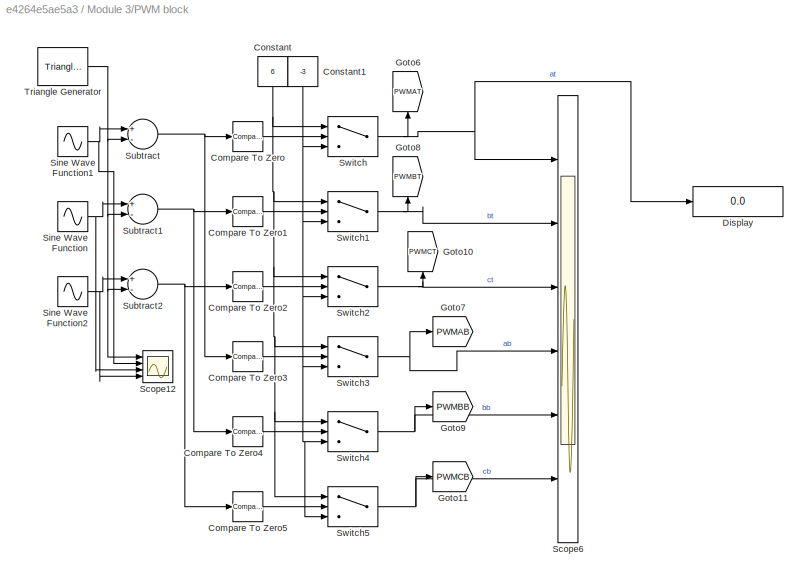
BLOCK [SubSystem] Module 3/PWM block
  Ports = []
  RequestExecContextInheritance = off
BLOCK [Reference] Module 3/PWM block/Compare To Zero  REF=simulink/Logic and Bit
Operations/Compare
To Zero
  Ports = [1, 1]
  SourceBlock = simulink/Logic and Bit\nOperations/Compare\nTo Zero
  SourceProductBaseCode = SL
  SourceProductName = Simulink
  SourceType = Compare To Zero
BLOCK [Reference] Module 3/PWM block/Compare To Zero1  REF=simulink/Logic and Bit
Operations/Compare
To Zero
  Ports = [1, 1]
  SourceBlock = simulink/Logic and Bit\nOperations/Compare\nTo Zero
  SourceProductBaseCode = SL
  SourceProductName = Simulink
  SourceType = Compare To Zero
BLOCK [Reference] Module 3/PWM block/Compare To Zero2  REF=simulink/Logic and Bit
Operations/Compare
To Zero
  Ports = [1, 1]
  SourceBlock = simulink/Logic and Bit\nOperations/Compare\nTo Zero
  SourceProductBaseCode = SL
  SourceProductName = Simulink
  SourceType = Compare To Zero
BLOCK [Reference] Module 3/PWM block/Compare To Zero3  REF=simulink/Logic and Bit
Operations/Compare
To Zero
  Ports = [1, 1]
  SourceBlock = simulink/Logic and Bit\nOperations/Compare\nTo Zero
  SourceProductBaseCode = SL
  SourceProductName = Simulink
  SourceType = Compare To Zero
BLOCK [Reference] Module 3/PWM block/Compare To Zero4  REF=simulink/Logic and Bit
Operations/Compare
To Zero
  Ports = [1, 1]
  SourceBlock = simulink/Logic and Bit\nOperations/Compare\nTo Zero
  SourceProductBaseCode = SL
  SourceProductName = Simulink
  SourceType = Compare To Zero
BLOCK [Reference] Module 3/PWM block/Compare To Zero5  REF=simulink/Logic and Bit
Operations/Compare
To Zero
  Ports = [1, 1]
  SourceBlock = simulink/Logic and Bit\nOperations/Compare\nTo Zero
  SourceProductBaseCode = SL
  SourceProductName = Simulink
  SourceType = Compare To Zero
BLOCK [Constant] Module 3/PWM block/Constant
  Value = 6
BLOCK [Constant] Module 3/PWM block/Constant1
  Value = -3
BLOCK [Display] Module 3/PWM block/Display
  Decimation = 1
  Ports = [1]
BLOCK [Goto] Module 3/PWM block/Goto10
  GotoTag = PWMCT
  TagVisibility = global
BLOCK [Goto] Module 3/PWM block/Goto11
  GotoTag = PWMCB
  TagVisibility = global
BLOCK [Goto] Module 3/PWM block/Goto6
  GotoTag = PWMAT
  TagVisibility = global
BLOCK [Goto] Module 3/PWM block/Goto7
  GotoTag = PWMAB
  TagVisibility = global
BLOCK [Goto] Module 3/PWM block/Goto8
  GotoTag = PWMBT
  TagVisibility = global
BLOCK [Goto] Module 3/PWM block/Goto9
  GotoTag = PWMBB
  TagVisibility = global
BLOCK [Scope] Module 3/PWM block/Scope12
  Floating = off
  NumInputPorts = 4
  Ports = [4]
  ScopeSpecificationString = Simulink.scopes.TimeScopeBlockCfg('CurrentConfiguration', extmgr.ConfigurationSet(extmgr.Configuration('Core','General UI',true),extmgr.Configuration('Core','Source UI',true),extmgr.Configuration('Sources','WiredSimulink',true,'DataLoggingVariableName','ScopeData3'),extmgr.Configuration('Visuals','Time Domain',true,'SerializedDisplays',{struct('MinYLimReal','-1.25','MaxYLimReal','1.25','YLabelReal...<+1451ch>
BLOCK [Scope] Module 3/PWM block/Scope6
  Floating = off
  NumInputPorts = 6
  Ports = [6]
  ScopeSpecificationString = Simulink.scopes.TimeScopeBlockCfg('CurrentConfiguration', extmgr.ConfigurationSet(extmgr.Configuration('Core','General UI',true),extmgr.Configuration('Core','Source UI',true),extmgr.Configuration('Sources','WiredSimulink',true,'DataLoggingVariableName','ScopeData9','DataLoggingLimitDataPoints',true),extmgr.Configuration('Visuals','Time Domain',true,'SerializedDisplays',{struct('MinYLimReal','-4.12...<+5174ch>
BLOCK [Sin] Module 3/PWM block/Sine Wave Function
  Amplitude = ModulationIndex1
  Frequency = ffund*2*pi
  Phase = -2*pi/3
  Ports = [0, 1]
  SampleTime = 0
BLOCK [Sin] Module 3/PWM block/Sine Wave Function1
  Amplitude = ModulationIndex1
  Frequency = ffund*2*pi
  Ports = [0, 1]
  SampleTime = 0
BLOCK [Sin] Module 3/PWM block/Sine Wave Function2
  Amplitude = ModulationIndex1
  Frequency = ffund*2*pi
  Phase = 2*pi/3
  Ports = [0, 1]
  SampleTime = 0
BLOCK [Sum] Module 3/PWM block/Subtract
  InputSameDT = off
  Inputs = +-
  OutDataTypeStr = Inherit: Inherit via internal rule
  Ports = [2, 1]
  SaturateOnIntegerOverflow = off
BLOCK [Sum] Module 3/PWM block/Subtract1
  InputSameDT = off
  Inputs = +-
  OutDataTypeStr = Inherit: Inherit via internal rule
  Ports = [2, 1]
  SaturateOnIntegerOverflow = off
BLOCK [Sum] Module 3/PWM block/Subtract2
  InputSameDT = off
  Inputs = +-
  OutDataTypeStr = Inherit: Inherit via internal rule
  Ports = [2, 1]
  SaturateOnIntegerOverflow = off
BLOCK [Switch] Module 3/PWM block/Switch
  Criteria = u2 > Threshold
  InputSameDT = off
  SaturateOnIntegerOverflow = off
BLOCK [Switch] Module 3/PWM block/Switch1
  Criteria = u2 > Threshold
  InputSameDT = off
  SaturateOnIntegerOverflow = off
BLOCK [Switch] Module 3/PWM block/Switch2
  Criteria = u2 > Threshold
  InputSameDT = off
  SaturateOnIntegerOverflow = off
BLOCK [Switch] Module 3/PWM block/Switch3
  Criteria = u2 > Threshold
  InputSameDT = off
  SaturateOnIntegerOverflow = off
BLOCK [Switch] Module 3/PWM block/Switch4
  Criteria = u2 > Threshold
  InputSameDT = off
  SaturateOnIntegerOverflow = off
BLOCK [Switch] Module 3/PWM block/Switch5
  Criteria = u2 > Threshold
  InputSameDT = off
  SaturateOnIntegerOverflow = off
BLOCK [Reference] Module 3/PWM block/Triangle Generator  REF=powerlib_meascontrol/Pulse & Signal
Generators/Triangle
Generator
  Ports = [0, 1]
  SourceBlock = powerlib_meascontrol/Pulse & Signal\nGenerators/Triangle\nGenerator
  SourceProductBaseCode = PS
  SourceProductName = Simscape Power Systems
  SourceType = Triangle Generator
BLOCK [SubSystem] Module 3/R L Load2
  Ports = [0, 2, 0, 0, 0, 3, 1]
  RequestExecContextInheritance = off
BLOCK [PMIOPort] Module 3/R L Load2/A
  Side = Left
BLOCK [PMIOPort] Module 3/R L Load2/B
  Port = 2
  Side = Left
BLOCK [BusCreator] Module 3/R L Load2/Bus Creator
  DisplayOption = bar
  InheritFromInputs = on
  Inputs = 3
  Ports = [3, 1]
BLOCK [BusCreator] Module 3/R L Load2/Bus Creator1
  DisplayOption = bar
  InheritFromInputs = on
  Inputs = 3
  Ports = [3, 1]
BLOCK [PMIOPort] Module 3/R L Load2/C
  Port = 3
  Side = Left
BLOCK [SubSystem] Module 3/R L Load2/Current Measurement
  Ports = [0, 1, 0, 0, 0, 1, 1]
  RequestExecContextInheritance = off
BLOCK [Reference] Module 3/R L Load2/Current Measurement/Current Measurement  REF=powerlib/Measurements/Current Measurement
  Ports = [0, 1, 0, 0, 0, 1, 1]
  SourceBlock = powerlib/Measurements/Current Measurement
  SourceProductBaseCode = PS
  SourceProductName = Simscape Power Systems
  SourceType = Current Measurement
  UserDataPersistent = on
BLOCK [Outport] Module 3/R L Load2/Current Measurement/Data
  IconDisplay = Port number
BLOCK [PMIOPort] Module 3/R L Load2/Current Measurement/i+
  Port = 2
  Side = Left
BLOCK [PMIOPort] Module 3/R L Load2/Current Measurement/i-
  Side = Right
BLOCK [SubSystem] Module 3/R L Load2/Current Measurement1
  Ports = [0, 1, 0, 0, 0, 1, 1]
  RequestExecContextInheritance = off
BLOCK [Reference] Module 3/R L Load2/Current Measurement1/Current Measurement  REF=powerlib/Measurements/Current Measurement
  Ports = [0, 1, 0, 0, 0, 1, 1]
  SourceBlock = powerlib/Measurements/Current Measurement
  SourceProductBaseCode = PS
  SourceProductName = Simscape Power Systems
  SourceType = Current Measurement
  UserDataPersistent = on
BLOCK [Outport] Module 3/R L Load2/Current Measurement1/Data
  IconDisplay = Port number
BLOCK [PMIOPort] Module 3/R L Load2/Current Measurement1/i+
  Port = 2
  Side = Left
BLOCK [PMIOPort] Module 3/R L Load2/Current Measurement1/i-
  Side = Right
BLOCK [SubSystem] Module 3/R L Load2/Current Measurement2
  Ports = [0, 1, 0, 0, 0, 1, 1]
  RequestExecContextInheritance = off
BLOCK [Reference] Module 3/R L Load2/Current Measurement2/Current Measurement  REF=powerlib/Measurements/Current Measurement
  Ports = [0, 1, 0, 0, 0, 1, 1]
  SourceBlock = powerlib/Measurements/Current Measurement
  SourceProductBaseCode = PS
  SourceProductName = Simscape Power Systems
  SourceType = Current Measurement
  UserDataPersistent = on
BLOCK [Outport] Module 3/R L Load2/Current Measurement2/Data
  IconDisplay = Port number
BLOCK [PMIOPort] Module 3/R L Load2/Current Measurement2/i+
  Port = 2
  Side = Left
BLOCK [PMIOPort] Module 3/R L Load2/Current Measurement2/i-
  Side = Right
BLOCK [Outport] Module 3/R L Load2/Currents
  IconDisplay = Port number
  Port = 2
BLOCK [PMIOPort] Module 3/R L Load2/N
  Port = 4
  Side = Right
BLOCK [Reference] Module 3/R L Load2/Series RLC Branch  REF=powerlib/Elements/Series RLC Branch
  Ports = [0, 0, 0, 0, 0, 1, 1]
  SourceBlock = powerlib/Elements/Series RLC Branch
  SourceProductBaseCode = PS
  SourceProductName = Simscape Power Systems
  SourceType = Series RLC Branch
BLOCK [Reference] Module 3/R L Load2/Series RLC Branch1  REF=powerlib/Elements/Series RLC Branch
  Ports = [0, 0, 0, 0, 0, 1, 1]
  SourceBlock = powerlib/Elements/Series RLC Branch
  SourceProductBaseCode = PS
  SourceProductName = Simscape Power Systems
  SourceType = Series RLC Branch
BLOCK [Reference] Module 3/R L Load2/Series RLC Branch2  REF=powerlib/Elements/Series RLC Branch
  Ports = [0, 0, 0, 0, 0, 1, 1]
  SourceBlock = powerlib/Elements/Series RLC Branch
  SourceProductBaseCode = PS
  SourceProductName = Simscape Power Systems
  SourceType = Series RLC Branch
BLOCK [SubSystem] Module 3/R L Load2/Subsystem
  Ports = [0, 1, 0, 0, 0, 0, 2]
  RequestExecContextInheritance = off
BLOCK [Outport] Module 3/R L Load2/Subsystem/Data
  IconDisplay = Port number
BLOCK [PMIOPort] Module 3/R L Load2/Subsystem/V+
  Side = Right
BLOCK [PMIOPort] Module 3/R L Load2/Subsystem/V-
  Port = 2
  Side = Right
BLOCK [Reference] Module 3/R L Load2/Subsystem/Voltage Measurement  REF=powerlib/Measurements/Voltage Measurement
  Ports = [0, 1, 0, 0, 0, 2]
  SourceBlock = powerlib/Measurements/Voltage Measurement
  SourceProductBaseCode = PS
  SourceProductName = Simscape Power Systems
  SourceType = Voltage Measurement
  UserDataPersistent = on
BLOCK [SubSystem] Module 3/R L Load2/Subsystem1
  Ports = [0, 1, 0, 0, 0, 0, 2]
  RequestExecContextInheritance = off
BLOCK [Outport] Module 3/R L Load2/Subsystem1/Data
  IconDisplay = Port number
BLOCK [PMIOPort] Module 3/R L Load2/Subsystem1/V+
  Side = Right
BLOCK [PMIOPort] Module 3/R L Load2/Subsystem1/V-
  Port = 2
  Side = Right
BLOCK [Reference] Module 3/R L Load2/Subsystem1/Voltage Measurement  REF=powerlib/Measurements/Voltage Measurement
  Ports = [0, 1, 0, 0, 0, 2]
  SourceBlock = powerlib/Measurements/Voltage Measurement
  SourceProductBaseCode = PS
  SourceProductName = Simscape Power Systems
  SourceType = Voltage Measurement
  UserDataPersistent = on
BLOCK [SubSystem] Module 3/R L Load2/Subsystem2
  Ports = [0, 1, 0, 0, 0, 0, 2]
  RequestExecContextInheritance = off
BLOCK [Outport] Module 3/R L Load2/Subsystem2/Data
  IconDisplay = Port number
BLOCK [PMIOPort] Module 3/R L Load2/Subsystem2/V+
  Side = Right
BLOCK [PMIOPort] Module 3/R L Load2/Subsystem2/V-
  Port = 2
  Side = Right
BLOCK [Reference] Module 3/R L Load2/Subsystem2/Voltage Measurement  REF=powerlib/Measurements/Voltage Measurement
  Ports = [0, 1, 0, 0, 0, 2]
  SourceBlock = powerlib/Measurements/Voltage Measurement
  SourceProductBaseCode = PS
  SourceProductName = Simscape Power Systems
  SourceType = Voltage Measurement
  UserDataPersistent = on
BLOCK [Outport] Module 3/R L Load2/Voltages
  IconDisplay = Port number
BLOCK [Saturate] Module 3/Saturation
  InputPortMap = u0
  LowerLimit = -20
  Ports = [1, 1]
  UpperLimit = Vmodule*1.5
BLOCK [Saturate] Module 3/Saturation1
  InputPortMap = u0
  LowerLimit = -20
  Ports = [1, 1]
  UpperLimit = Vmodule*1.5
BLOCK [Saturate] Module 3/Saturation2
  InputPortMap = u0
  LowerLimit = -20
  Ports = [1, 1]
  UpperLimit = Vmodule*1.5
BLOCK [Scope] Module 3/Scope
  Floating = off
  NumInputPorts = 1
  Ports = [1]
  ScopeSpecificationString = Simulink.scopes.TimeScopeBlockCfg('CurrentConfiguration', extmgr.ConfigurationSet(extmgr.Configuration('Core','General UI',true),extmgr.Configuration('Core','Source UI',true),extmgr.Configuration('Sources','WiredSimulink',true,'DataLoggingVariableName','ScopeData1'),extmgr.Configuration('Visuals','Time Domain',true,'SerializedDisplays',{struct('MinYLimReal','-4.70335','MaxYLimReal','5.42018','YLab...<+1418ch>
BLOCK [Scope] Module 3/Scope1
  Floating = off
  NumInputPorts = 1
  Ports = [1]
  ScopeSpecificationString = Simulink.scopes.TimeScopeBlockCfg('CurrentConfiguration', extmgr.ConfigurationSet(extmgr.Configuration('Core','General UI',true),extmgr.Configuration('Core','Source UI',true),extmgr.Configuration('Sources','WiredSimulink',true,'DataLoggingVariableName','ScopeData2'),extmgr.Configuration('Visuals','Time Domain',true),extmgr.Configuration('Tools','Plot Navigation',true),extmgr.Configuration('Tools',...<+40ch>
BLOCK [Reference] Module 3/Series RLC Branch  REF=powerlib/Elements/Series RLC Branch
  Ports = [0, 0, 0, 0, 0, 1, 1]
  SourceBlock = powerlib/Elements/Series RLC Branch
  SourceProductBaseCode = PS
  SourceProductName = Simscape Power Systems
  SourceType = Series RLC Branch
BLOCK [Reference] Module 3/Series RLC Branch1  REF=powerlib/Elements/Series RLC Branch
  Ports = [0, 0, 0, 0, 0, 1, 1]
  SourceBlock = powerlib/Elements/Series RLC Branch
  SourceProductBaseCode = PS
  SourceProductName = Simscape Power Systems
  SourceType = Series RLC Branch
BLOCK [Reference] Module 3/Series RLC Branch10  REF=powerlib/Elements/Series RLC Branch
  Ports = [0, 0, 0, 0, 0, 1, 1]
  SourceBlock = powerlib/Elements/Series RLC Branch
  SourceProductBaseCode = PS
  SourceProductName = Simscape Power Systems
  SourceType = Series RLC Branch
BLOCK [Reference] Module 3/Series RLC Branch11  REF=powerlib/Elements/Series RLC Branch
  Ports = [0, 0, 0, 0, 0, 1, 1]
  SourceBlock = powerlib/Elements/Series RLC Branch
  SourceProductBaseCode = PS
  SourceProductName = Simscape Power Systems
  SourceType = Series RLC Branch
BLOCK [Reference] Module 3/Series RLC Branch12  REF=powerlib/Elements/Series RLC Branch
  Ports = [0, 0, 0, 0, 0, 1, 1]
  SourceBlock = powerlib/Elements/Series RLC Branch
  SourceProductBaseCode = PS
  SourceProductName = Simscape Power Systems
  SourceType = Series RLC Branch
BLOCK [Reference] Module 3/Series RLC Branch13  REF=powerlib/Elements/Series RLC Branch
  Ports = [0, 0, 0, 0, 0, 1, 1]
  SourceBlock = powerlib/Elements/Series RLC Branch
  SourceProductBaseCode = PS
  SourceProductName = Simscape Power Systems
  SourceType = Series RLC Branch
BLOCK [Reference] Module 3/Series RLC Branch14  REF=powerlib/Elements/Series RLC Branch
  Ports = [0, 0, 0, 0, 0, 1, 1]
  SourceBlock = powerlib/Elements/Series RLC Branch
  SourceProductBaseCode = PS
  SourceProductName = Simscape Power Systems
  SourceType = Series RLC Branch
BLOCK [Reference] Module 3/Series RLC Branch15  REF=powerlib/Elements/Series RLC Branch
  Ports = [0, 0, 0, 0, 0, 1, 1]
  SourceBlock = powerlib/Elements/Series RLC Branch
  SourceProductBaseCode = PS
  SourceProductName = Simscape Power Systems
  SourceType = Series RLC Branch
BLOCK [Reference] Module 3/Series RLC Branch16  REF=powerlib/Elements/Series RLC Branch
  Ports = [0, 0, 0, 0, 0, 1, 1]
  SourceBlock = powerlib/Elements/Series RLC Branch
  SourceProductBaseCode = PS
  SourceProductName = Simscape Power Systems
  SourceType = Series RLC Branch
BLOCK [Reference] Module 3/Series RLC Branch17  REF=powerlib/Elements/Series RLC Branch
  Ports = [0, 0, 0, 0, 0, 1, 1]
  SourceBlock = powerlib/Elements/Series RLC Branch
  SourceProductBaseCode = PS
  SourceProductName = Simscape Power Systems
  SourceType = Series RLC Branch
BLOCK [Reference] Module 3/Series RLC Branch18  REF=powerlib/Elements/Series RLC Branch
  Ports = [0, 0, 0, 0, 0, 1, 1]
  SourceBlock = powerlib/Elements/Series RLC Branch
  SourceProductBaseCode = PS
  SourceProductName = Simscape Power Systems
  SourceType = Series RLC Branch
BLOCK [Reference] Module 3/Series RLC Branch19  REF=powerlib/Elements/Series RLC Branch
  Ports = [0, 0, 0, 0, 0, 1, 1]
  SourceBlock = powerlib/Elements/Series RLC Branch
  SourceProductBaseCode = PS
  SourceProductName = Simscape Power Systems
  SourceType = Series RLC Branch
BLOCK [Reference] Module 3/Series RLC Branch2  REF=powerlib/Elements/Series RLC Branch
  Ports = [0, 0, 0, 0, 0, 1, 1]
  SourceBlock = powerlib/Elements/Series RLC Branch
  SourceProductBaseCode = PS
  SourceProductName = Simscape Power Systems
  SourceType = Series RLC Branch
BLOCK [Reference] Module 3/Series RLC Branch4  REF=powerlib/Elements/Series RLC Branch
  Ports = [0, 0, 0, 0, 0, 1, 1]
  SourceBlock = powerlib/Elements/Series RLC Branch
  SourceProductBaseCode = PS
  SourceProductName = Simscape Power Systems
  SourceType = Series RLC Branch
BLOCK [Reference] Module 3/Series RLC Branch5  REF=powerlib/Elements/Series RLC Branch
  Ports = [0, 0, 0, 0, 0, 1, 1]
  SourceBlock = powerlib/Elements/Series RLC Branch
  SourceProductBaseCode = PS
  SourceProductName = Simscape Power Systems
  SourceType = Series RLC Branch
BLOCK [Reference] Module 3/Series RLC Branch6  REF=powerlib/Elements/Series RLC Branch
  Ports = [0, 0, 0, 0, 0, 1, 1]
  SourceBlock = powerlib/Elements/Series RLC Branch
  SourceProductBaseCode = PS
  SourceProductName = Simscape Power Systems
  SourceType = Series RLC Branch
BLOCK [Reference] Module 3/Series RLC Branch7  REF=powerlib/Elements/Series RLC Branch
  Ports = [0, 0, 0, 0, 0, 1, 1]
  SourceBlock = powerlib/Elements/Series RLC Branch
  SourceProductBaseCode = PS
  SourceProductName = Simscape Power Systems
  SourceType = Series RLC Branch
BLOCK [Reference] Module 3/Series RLC Branch8  REF=powerlib/Elements/Series RLC Branch
  Ports = [0, 0, 0, 0, 0, 1, 1]
  SourceBlock = powerlib/Elements/Series RLC Branch
  SourceProductBaseCode = PS
  SourceProductName = Simscape Power Systems
  SourceType = Series RLC Branch
BLOCK [Reference] Module 3/Series RLC Branch9  REF=powerlib/Elements/Series RLC Branch
  Ports = [0, 0, 0, 0, 0, 1, 1]
  SourceBlock = powerlib/Elements/Series RLC Branch
  SourceProductBaseCode = PS
  SourceProductName = Simscape Power Systems
  SourceType = Series RLC Branch
BLOCK [SubSystem] Module 3/Subsystem
  Ports = [0, 0, 0, 0, 0, 2]
  RequestExecContextInheritance = off
BLOCK [Goto] Module 3/Subsystem/Goto13
  GotoTag = ACap
  TagVisibility = global
BLOCK [PMIOPort] Module 3/Subsystem/V+
  Side = Left
BLOCK [PMIOPort] Module 3/Subsystem/V-
  Port = 2
  Side = Left
BLOCK [Reference] Module 3/Subsystem/Voltage Measurement  REF=powerlib/Measurements/Voltage Measurement
  Ports = [0, 1, 0, 0, 0, 2]
  SourceBlock = powerlib/Measurements/Voltage Measurement
  SourceProductBaseCode = PS
  SourceProductName = Simscape Power Systems
  SourceType = Voltage Measurement
  UserDataPersistent = on
BLOCK [SubSystem] Module 3/Subsystem1
  Ports = [0, 0, 0, 0, 0, 2]
  RequestExecContextInheritance = off
BLOCK [Goto] Module 3/Subsystem1/Goto13
  GotoTag = BCap
  TagVisibility = global
BLOCK [PMIOPort] Module 3/Subsystem1/V+
  Side = Left
BLOCK [PMIOPort] Module 3/Subsystem1/V-
  Port = 2
  Side = Left
BLOCK [Reference] Module 3/Subsystem1/Voltage Measurement  REF=powerlib/Measurements/Voltage Measurement
  Ports = [0, 1, 0, 0, 0, 2]
  SourceBlock = powerlib/Measurements/Voltage Measurement
  SourceProductBaseCode = PS
  SourceProductName = Simscape Power Systems
  SourceType = Voltage Measurement
  UserDataPersistent = on
BLOCK [SubSystem] Module 3/Subsystem2
  Ports = [0, 0, 0, 0, 0, 2]
  RequestExecContextInheritance = off
BLOCK [Goto] Module 3/Subsystem2/Goto13
  GotoTag = CCap
  TagVisibility = global
BLOCK [PMIOPort] Module 3/Subsystem2/V+
  Side = Left
BLOCK [PMIOPort] Module 3/Subsystem2/V-
  Port = 2
  Side = Left
BLOCK [Reference] Module 3/Subsystem2/Voltage Measurement  REF=powerlib/Measurements/Voltage Measurement
  Ports = [0, 1, 0, 0, 0, 2]
  SourceBlock = powerlib/Measurements/Voltage Measurement
  SourceProductBaseCode = PS
  SourceProductName = Simscape Power Systems
  SourceType = Voltage Measurement
  UserDataPersistent = on
BLOCK [SubSystem] Module 3/Subsystem3
  Ports = [0, 1, 0, 0, 0, 2]
  RequestExecContextInheritance = off
BLOCK [PMIOPort] Module 3/Subsystem3/V+
  Side = Left
BLOCK [PMIOPort] Module 3/Subsystem3/V-
  Port = 2
  Side = Left
BLOCK [Reference] Module 3/Subsystem3/Voltage Measurement  REF=powerlib/Measurements/Voltage Measurement
  Ports = [0, 1, 0, 0, 0, 2]
  SourceBlock = powerlib/Measurements/Voltage Measurement
  SourceProductBaseCode = PS
  SourceProductName = Simscape Power Systems
  SourceType = Voltage Measurement
  UserDataPersistent = on
BLOCK [Outport] Module 3/Subsystem3/data
  IconDisplay = Port number
BLOCK [Terminator] Module 3/Terminator1
BLOCK [Terminator] Module 3/Terminator10
BLOCK [Terminator] Module 3/Terminator12
BLOCK [Terminator] Module 3/Terminator13
BLOCK [Terminator] Module 3/Terminator2
BLOCK [Terminator] Module 3/Terminator3
BLOCK [Terminator] Module 3/Terminator4
BLOCK [Terminator] Module 3/Terminator5
BLOCK [Terminator] Module 3/Terminator6
BLOCK [Terminator] Module 3/Terminator7
BLOCK [Terminator] Module 3/Terminator8
BLOCK [Terminator] Module 3/Terminator9
BLOCK [PMIOPort] Module 3/VdcNeg
  Port = 2
  Side = Left
BLOCK [PMIOPort] Module 3/VdcPos
  Side = Left
BLOCK [Reference] RMS1  REF=powerlib_meascontrol/Measurements/RMS
  Ports = [1, 1]
  SourceBlock = powerlib_meascontrol/Measurements/RMS
  SourceProductBaseCode = PS
  SourceProductName = Simscape Power Systems
  SourceType = RMS
BLOCK [Scope] Scope
  Floating = off
  NumInputPorts = 3
  Ports = [3]
  ScopeSpecificationString = Simulink.scopes.TimeScopeBlockCfg('CurrentConfiguration', extmgr.ConfigurationSet(extmgr.Configuration('Core','General UI',true),extmgr.Configuration('Core','Source UI',true),extmgr.Configuration('Sources','WiredSimulink',true,'DataLoggingVariableName','ScopeData2'),extmgr.Configuration('Visuals','Time Domain',true,'SerializedDisplays',{struct('MinYLimReal','-15.81566','MaxYLimReal','142.34092','Y...<+1519ch>
BLOCK [Scope] Scope1
  Floating = off
  NumInputPorts = 3
  Ports = [3]
  ScopeSpecificationString = Simulink.scopes.TimeScopeBlockCfg('CurrentConfiguration', extmgr.ConfigurationSet(extmgr.Configuration('Core','General UI',true,'FigureColor',[0.941176470588235 0.941176470588235 0.941176470588235]),extmgr.Configuration('Core','Source UI',true),extmgr.Configuration('Sources','WiredSimulink',true,'DataLoggingVariableName','ScopeData1'),extmgr.Configuration('Visuals','Time Domain',true,'SerializedDi...<+2290ch>
BLOCK [Scope] Scope11
  Floating = off
  NumInputPorts = 1
  Ports = [1]
  ScopeSpecificationString = Simulink.scopes.TimeScopeBlockCfg('CurrentConfiguration', extmgr.ConfigurationSet(extmgr.Configuration('Core','General UI',true),extmgr.Configuration('Core','Source UI',true),extmgr.Configuration('Sources','WiredSimulink',true,'DataLoggingVariableName','ScopeData1'),extmgr.Configuration('Visuals','Time Domain',true,'SerializedDisplays',{struct('MinYLimReal','-27.01729','MaxYLimReal','46.20625','YL...<+1428ch>
BLOCK [Scope] Scope12
  Floating = off
  NumInputPorts = 1
  Ports = [1]
  ScopeSpecificationString = Simulink.scopes.TimeScopeBlockCfg('CurrentConfiguration', extmgr.ConfigurationSet(extmgr.Configuration('Core','General UI',true),extmgr.Configuration('Core','Source UI',true),extmgr.Configuration('Sources','WiredSimulink',true,'DataLoggingVariableName','ScopeData2'),extmgr.Configuration('Visuals','Time Domain',true,'SerializedDisplays',{struct('MinYLimReal','-6.81217','MaxYLimReal','63.57656','YLa...<+1401ch>
BLOCK [Scope] Scope13
  Floating = off
  NumInputPorts = 1
  Ports = [1]
  ScopeSpecificationString = Simulink.scopes.TimeScopeBlockCfg('CurrentConfiguration', extmgr.ConfigurationSet(extmgr.Configuration('Core','General UI',true),extmgr.Configuration('Core','Source UI',true),extmgr.Configuration('Sources','WiredSimulink',true,'DataLoggingVariableName','ScopeData8'),extmgr.Configuration('Visuals','Time Domain',true,'SerializedDisplays',{struct('MinYLimReal','-0.01515','MaxYLimReal','0.0118','YLabe...<+1451ch>
BLOCK [Scope] Scope3
  Floating = off
  IOType = viewer
  NumInputPorts = 1
  Ports = []
  ScopeSpecificationString = Simulink.scopes.TimeScopeBlockCfg('CurrentConfiguration', extmgr.ConfigurationSet(extmgr.Configuration('Core','General UI',true),extmgr.Configuration('Core','Source UI',true),extmgr.Configuration('Sources','WiredSimulink',true,'DataLoggingVariableName','ScopeData1'),extmgr.Configuration('Visuals','Time Domain',true,'SerializedDisplays',{struct('MinYLimReal','-8.58237','MaxYLimReal','14.61504','YLa...<+1744ch>
BLOCK [Scope] Scope4
  Floating = off
  IOType = viewer
  NumInputPorts = 1
  Ports = []
  ScopeSpecificationString = Simulink.scopes.TimeScopeBlockCfg('CurrentConfiguration', extmgr.ConfigurationSet(extmgr.Configuration('Core','General UI',true),extmgr.Configuration('Core','Source UI',true),extmgr.Configuration('Sources','WiredSimulink',true,'DataLoggingVariableName','ScopeData4'),extmgr.Configuration('Visuals','Time Domain',true,'SerializedDisplays',{struct('MinYLimReal','4.70463','MaxYLimReal','17.35981','YLab...<+1388ch>
BLOCK [Scope] Scope5
  Floating = off
  IOType = viewer
  NumInputPorts = 1
  Ports = []
  ScopeSpecificationString = Simulink.scopes.TimeScopeBlockCfg('CurrentConfiguration', extmgr.ConfigurationSet(extmgr.Configuration('Core','General UI',true),extmgr.Configuration('Core','Source UI',true),extmgr.Configuration('Sources','WiredSimulink',true,'DataLoggingVariableName','ScopeData3'),extmgr.Configuration('Visuals','Time Domain',true,'SerializedDisplays',{struct('MinYLimReal','-10.00000','MaxYLimReal','10.00000','YL...<+1365ch>
BLOCK [Scope] Scope7
  Floating = off
  IOType = viewer
  NumInputPorts = 1
  Ports = []
  ScopeSpecificationString = Simulink.scopes.TimeScopeBlockCfg('CurrentConfiguration', extmgr.ConfigurationSet(extmgr.Configuration('Core','General UI',true),extmgr.Configuration('Core','Source UI',true),extmgr.Configuration('Sources','WiredSimulink',true,'DataLoggingVariableName','ScopeData4'),extmgr.Configuration('Visuals','Time Domain',true,'SerializedDisplays',{struct('MinYLimReal','-0.32545','MaxYLimReal','2.92905','YLab...<+1386ch>
BLOCK [Reference] Series RLC Branch  REF=powerlib/Elements/Series RLC Branch
  Ports = [0, 0, 0, 0, 0, 1, 1]
  SourceBlock = powerlib/Elements/Series RLC Branch
  SourceProductBaseCode = PS
  SourceProductName = Simscape Power Systems
  SourceType = Series RLC Branch
BLOCK [Reference] Series RLC Branch1  REF=powerlib/Elements/Series RLC Branch
  Ports = [0, 0, 0, 0, 0, 1, 1]
  SourceBlock = powerlib/Elements/Series RLC Branch
  SourceProductBaseCode = PS
  SourceProductName = Simscape Power Systems
  SourceType = Series RLC Branch
BLOCK [SubSystem] Subsystem
  Ports = [0, 0, 0, 0, 0, 2]
  RequestExecContextInheritance = off
BLOCK [Goto] Subsystem/Goto
  GotoTag = Vdc
  TagVisibility = global
BLOCK [PMIOPort] Subsystem/V+
  Side = Left
BLOCK [PMIOPort] Subsystem/V-
  Port = 2
  Side = Left
BLOCK [Reference] Subsystem/Voltage Measurement  REF=powerlib/Measurements/Voltage Measurement
  Ports = [0, 1, 0, 0, 0, 2]
  SourceBlock = powerlib/Measurements/Voltage Measurement
  SourceProductBaseCode = PS
  SourceProductName = Simscape Power Systems
  SourceType = Voltage Measurement
  UserDataPersistent = on
BLOCK [Terminator] Terminator1
BLOCK [Terminator] Terminator10
BLOCK [Terminator] Terminator6
BLOCK [Terminator] Terminator9
BLOCK [ToWorkspace] To Workspace
  FixptAsFi = on
  MaxDataPoints = inf
  Ports = [1]
  SampleTime = -1
  Save2DSignal = 3-D array (concatenate along third dimension)
  SaveFormat = Timeseries
  VariableName = simout
BLOCK [Reference] powergui  REF=powerlib/powergui
  Ports = []
  Priority = 1
  SourceBlock = powerlib/powergui
  SourceProductBaseCode = PS
  SourceProductName = Simscape Power Systems
  SourceType = PSB option menu block
LINE Bus Selector1:1 -> Scope1:2
LINE Current Measurement/Current Measurement:1 -> Current Measurement/Goto:1
LINE DC Supply/Subsystem/Voltage Measurement:1 -> DC Supply/Subsystem/Scope:1
LINE Demux:2 -> To Workspace:1
NET From1:1 -> Mean:1, Scope11:1
NET From:1 -> Mean1:1, Scope12:1
LINE Mean1:1 -> Display1:1
LINE Mean:1 -> Display:1
LINE Module 3/Bus Creator1:1 -> Module 3/CapacitorCurrent:1
LINE Module 3/Bus Creator:1 -> Module 3/CapacitorVoltage:1
LINE Module 3/Current Measurement/Current Measurement:1 -> Module 3/Current Measurement/Goto13:1
LINE Module 3/Current Measurement1/Current Measurement:1 -> Module 3/Current Measurement1/Goto13:1
LINE Module 3/Current Measurement2/Current Measurement:1 -> Module 3/Current Measurement2/Goto13:1
LINE Module 3/Current Measurement3/Current Measurement:1 -> Module 3/Current Measurement3/data:1
NET Module 3/Current Measurement3:1 -> Module 3/DC Current:1, Module 3/Scope1:1
LINE Module 3/From10:1 -> Module 3/Bus Creator1:2
LINE Module 3/From11:1 -> Module 3/Bus Creator1:3
LINE Module 3/From12:1 -> Module 3/Gate Driver6:1
LINE Module 3/From13:1 -> Module 3/Gate Driver1:1
LINE Module 3/From14:1 -> Module 3/Gate Driver2:1
LINE Module 3/From15:1 -> Module 3/Gate Driver3:1
LINE Module 3/From16:1 -> Module 3/Gate Driver4:1
LINE Module 3/From17:1 -> Module 3/Gate Driver5:1
LINE Module 3/From6:1 -> Module 3/Saturation2:1
LINE Module 3/From7:1 -> Module 3/Saturation1:1
LINE Module 3/From8:1 -> Module 3/Saturation:1
LINE Module 3/From9:1 -> Module 3/Bus Creator1:1
LINE Module 3/Gate Driver1/Current Measurement/Current Measurement:1 -> Module 3/Gate Driver1/Current Measurement/Data:1
LINE Module 3/Gate Driver1/Current Measurement:1 -> Module 3/Gate Driver1/Curr1:1
LINE Module 3/Gate Driver1/PWM:1 -> Module 3/Gate Driver1/IGBT:1
LINE Module 3/Gate Driver1/Rate Limiter2/Constant2:1 -> Module 3/Gate Driver1/Rate Limiter2/Rate Limiter Dynamic:1
LINE Module 3/Gate Driver1/Rate Limiter2/Constant3:1 -> Module 3/Gate Driver1/Rate Limiter2/Rate Limiter Dynamic:3
LINE Module 3/Gate Driver1/Rate Limiter2/Inp:1 -> Module 3/Gate Driver1/Rate Limiter2/Rate Limiter Dynamic:2
LINE Module 3/Gate Driver1/Rate Limiter2/Rate Limiter Dynamic:1 -> Module 3/Gate Driver1/Rate Limiter2/Outp:1
LINE Module 3/Gate Driver1/Subsystem/Voltage Measurement:1 -> Module 3/Gate Driver1/Subsystem/Data:1
LINE Module 3/Gate Driver1/Subsystem:1 -> Module 3/Gate Driver1/Volt:1
LINE Module 3/Gate Driver1:1 -> Module 3/Terminator1:1
LINE Module 3/Gate Driver1:2 -> Module 3/Terminator2:1
LINE Module 3/Gate Driver2/Current Measurement/Current Measurement:1 -> Module 3/Gate Driver2/Current Measurement/Data:1
LINE Module 3/Gate Driver2/Current Measurement:1 -> Module 3/Gate Driver2/Curr1:1
LINE Module 3/Gate Driver2/PWM:1 -> Module 3/Gate Driver2/IGBT:1
LINE Module 3/Gate Driver2/Rate Limiter2/Constant2:1 -> Module 3/Gate Driver2/Rate Limiter2/Rate Limiter Dynamic:1
LINE Module 3/Gate Driver2/Rate Limiter2/Constant3:1 -> Module 3/Gate Driver2/Rate Limiter2/Rate Limiter Dynamic:3
LINE Module 3/Gate Driver2/Rate Limiter2/Inp:1 -> Module 3/Gate Driver2/Rate Limiter2/Rate Limiter Dynamic:2
LINE Module 3/Gate Driver2/Rate Limiter2/Rate Limiter Dynamic:1 -> Module 3/Gate Driver2/Rate Limiter2/Outp:1
LINE Module 3/Gate Driver2/Subsystem/Voltage Measurement:1 -> Module 3/Gate Driver2/Subsystem/Data:1
LINE Module 3/Gate Driver2/Subsystem:1 -> Module 3/Gate Driver2/Volt:1
LINE Module 3/Gate Driver2:1 -> Module 3/Terminator3:1
LINE Module 3/Gate Driver2:2 -> Module 3/Terminator4:1
LINE Module 3/Gate Driver3/Current Measurement/Current Measurement:1 -> Module 3/Gate Driver3/Current Measurement/Data:1
LINE Module 3/Gate Driver3/Current Measurement:1 -> Module 3/Gate Driver3/Curr1:1
LINE Module 3/Gate Driver3/PWM:1 -> Module 3/Gate Driver3/IGBT:1
LINE Module 3/Gate Driver3/Rate Limiter2/Constant2:1 -> Module 3/Gate Driver3/Rate Limiter2/Rate Limiter Dynamic:1
LINE Module 3/Gate Driver3/Rate Limiter2/Constant3:1 -> Module 3/Gate Driver3/Rate Limiter2/Rate Limiter Dynamic:3
LINE Module 3/Gate Driver3/Rate Limiter2/Inp:1 -> Module 3/Gate Driver3/Rate Limiter2/Rate Limiter Dynamic:2
LINE Module 3/Gate Driver3/Rate Limiter2/Rate Limiter Dynamic:1 -> Module 3/Gate Driver3/Rate Limiter2/Outp:1
LINE Module 3/Gate Driver3/Subsystem/Voltage Measurement:1 -> Module 3/Gate Driver3/Subsystem/Data:1
LINE Module 3/Gate Driver3/Subsystem:1 -> Module 3/Gate Driver3/Volt:1
LINE Module 3/Gate Driver3:1 -> Module 3/Terminator5:1
LINE Module 3/Gate Driver3:2 -> Module 3/Terminator6:1
LINE Module 3/Gate Driver4/Current Measurement/Current Measurement:1 -> Module 3/Gate Driver4/Current Measurement/Data:1
LINE Module 3/Gate Driver4/Current Measurement:1 -> Module 3/Gate Driver4/Curr1:1
LINE Module 3/Gate Driver4/PWM:1 -> Module 3/Gate Driver4/IGBT:1
LINE Module 3/Gate Driver4/Rate Limiter2/Constant2:1 -> Module 3/Gate Driver4/Rate Limiter2/Rate Limiter Dynamic:1
LINE Module 3/Gate Driver4/Rate Limiter2/Constant3:1 -> Module 3/Gate Driver4/Rate Limiter2/Rate Limiter Dynamic:3
LINE Module 3/Gate Driver4/Rate Limiter2/Inp:1 -> Module 3/Gate Driver4/Rate Limiter2/Rate Limiter Dynamic:2
LINE Module 3/Gate Driver4/Rate Limiter2/Rate Limiter Dynamic:1 -> Module 3/Gate Driver4/Rate Limiter2/Outp:1
LINE Module 3/Gate Driver4/Subsystem/Voltage Measurement:1 -> Module 3/Gate Driver4/Subsystem/Data:1
LINE Module 3/Gate Driver4/Subsystem:1 -> Module 3/Gate Driver4/Volt:1
LINE Module 3/Gate Driver4:1 -> Module 3/Terminator7:1
LINE Module 3/Gate Driver4:2 -> Module 3/Terminator8:1
LINE Module 3/Gate Driver5/Current Measurement/Current Measurement:1 -> Module 3/Gate Driver5/Current Measurement/Data:1
LINE Module 3/Gate Driver5/Current Measurement:1 -> Module 3/Gate Driver5/Curr1:1
LINE Module 3/Gate Driver5/PWM:1 -> Module 3/Gate Driver5/IGBT:1
LINE Module 3/Gate Driver5/Rate Limiter1/Constant2:1 -> Module 3/Gate Driver5/Rate Limiter1/Rate Limiter Dynamic:1
LINE Module 3/Gate Driver5/Rate Limiter1/Constant3:1 -> Module 3/Gate Driver5/Rate Limiter1/Rate Limiter Dynamic:3
LINE Module 3/Gate Driver5/Rate Limiter1/Inp:1 -> Module 3/Gate Driver5/Rate Limiter1/Rate Limiter Dynamic:2
LINE Module 3/Gate Driver5/Rate Limiter1/Rate Limiter Dynamic:1 -> Module 3/Gate Driver5/Rate Limiter1/Outp:1
LINE Module 3/Gate Driver5/Subsystem/Voltage Measurement:1 -> Module 3/Gate Driver5/Subsystem/Data:1
LINE Module 3/Gate Driver5/Subsystem:1 -> Module 3/Gate Driver5/Volt:1
LINE Module 3/Gate Driver5:1 -> Module 3/Terminator9:1
LINE Module 3/Gate Driver5:2 -> Module 3/Terminator10:1
LINE Module 3/Gate Driver6/Current Measurement/Current Measurement:1 -> Module 3/Gate Driver6/Current Measurement/Data:1
LINE Module 3/Gate Driver6/Current Measurement:1 -> Module 3/Gate Driver6/Curr1:1
LINE Module 3/Gate Driver6/PWM:1 -> Module 3/Gate Driver6/IGBT:1
LINE Module 3/Gate Driver6/Rate Limiter2/Constant2:1 -> Module 3/Gate Driver6/Rate Limiter2/Rate Limiter Dynamic:1
LINE Module 3/Gate Driver6/Rate Limiter2/Constant3:1 -> Module 3/Gate Driver6/Rate Limiter2/Rate Limiter Dynamic:3
LINE Module 3/Gate Driver6/Rate Limiter2/Inp:1 -> Module 3/Gate Driver6/Rate Limiter2/Rate Limiter Dynamic:2
LINE Module 3/Gate Driver6/Rate Limiter2/Rate Limiter Dynamic:1 -> Module 3/Gate Driver6/Rate Limiter2/Outp:1
LINE Module 3/Gate Driver6/Subsystem/Voltage Measurement:1 -> Module 3/Gate Driver6/Subsystem/Data:1
LINE Module 3/Gate Driver6/Subsystem:1 -> Module 3/Gate Driver6/Volt:1
LINE Module 3/Gate Driver6:1 -> Module 3/Terminator12:1
LINE Module 3/Gate Driver6:2 -> Module 3/Terminator13:1
LINE Module 3/PWM block/Compare To Zero1:1 -> Module 3/PWM block/Switch1:2
LINE Module 3/PWM block/Compare To Zero2:1 -> Module 3/PWM block/Switch2:2
LINE Module 3/PWM block/Compare To Zero3:1 -> Module 3/PWM block/Switch3:2
LINE Module 3/PWM block/Compare To Zero4:1 -> Module 3/PWM block/Switch4:2
LINE Module 3/PWM block/Compare To Zero5:1 -> Module 3/PWM block/Switch5:2
LINE Module 3/PWM block/Compare To Zero:1 -> Module 3/PWM block/Switch:2
NET Module 3/PWM block/Constant1:1 -> Module 3/PWM block/Switch1:3, Module 3/PWM block/Switch2:3, Module 3/PWM block/Switch3:3, Module 3/PWM block/Switch4:3, Module 3/PWM block/Switch5:3, Module 3/PWM block/Switch:3
NET Module 3/PWM block/Constant:1 -> Module 3/PWM block/Switch1:1, Module 3/PWM block/Switch2:1, Module 3/PWM block/Switch3:1, Module 3/PWM block/Switch4:1, Module 3/PWM block/Switch5:1, Module 3/PWM block/Switch:1
NET Module 3/PWM block/Sine Wave Function1:1 -> Module 3/PWM block/Scope12:2, Module 3/PWM block/Subtract:1
NET Module 3/PWM block/Sine Wave Function2:1 -> Module 3/PWM block/Scope12:4, Module 3/PWM block/Subtract2:1
NET Module 3/PWM block/Sine Wave Function:1 -> Module 3/PWM block/Scope12:3, Module 3/PWM block/Subtract1:1
NET Module 3/PWM block/Subtract1:1 -> Module 3/PWM block/Compare To Zero1:1, Module 3/PWM block/Compare To Zero4:1
NET Module 3/PWM block/Subtract2:1 -> Module 3/PWM block/Compare To Zero2:1, Module 3/PWM block/Compare To Zero5:1
NET Module 3/PWM block/Subtract:1 -> Module 3/PWM block/Compare To Zero3:1, Module 3/PWM block/Compare To Zero:1
NET Module 3/PWM block/Switch1:1 -> Module 3/PWM block/Goto8:1, Module 3/PWM block/Scope6:2
NET Module 3/PWM block/Switch2:1 -> Module 3/PWM block/Goto10:1, Module 3/PWM block/Scope6:3
NET Module 3/PWM block/Switch3:1 -> Module 3/PWM block/Goto7:1, Module 3/PWM block/Scope6:4
NET Module 3/PWM block/Switch4:1 -> Module 3/PWM block/Goto9:1, Module 3/PWM block/Scope6:5
NET Module 3/PWM block/Switch5:1 -> Module 3/PWM block/Goto11:1, Module 3/PWM block/Scope6:6
NET Module 3/PWM block/Switch:1 -> Module 3/PWM block/Display:1, Module 3/PWM block/Goto6:1, Module 3/PWM block/Scope6:1
NET Module 3/PWM block/Triangle Generator:1 -> Module 3/PWM block/Scope12:1, Module 3/PWM block/Subtract1:2, Module 3/PWM block/Subtract2:2, Module 3/PWM block/Subtract:2
LINE Module 3/R L Load2/Bus Creator1:1 -> Module 3/R L Load2/Currents:1
LINE Module 3/R L Load2/Bus Creator:1 -> Module 3/R L Load2/Voltages:1
LINE Module 3/R L Load2/Current Measurement/Current Measurement:1 -> Module 3/R L Load2/Current Measurement/Data:1
LINE Module 3/R L Load2/Current Measurement1/Current Measurement:1 -> Module 3/R L Load2/Current Measurement1/Data:1
LINE Module 3/R L Load2/Current Measurement1:1 -> Module 3/R L Load2/Bus Creator1:2
LINE Module 3/R L Load2/Current Measurement2/Current Measurement:1 -> Module 3/R L Load2/Current Measurement2/Data:1
LINE Module 3/R L Load2/Current Measurement2:1 -> Module 3/R L Load2/Bus Creator1:3
LINE Module 3/R L Load2/Current Measurement:1 -> Module 3/R L Load2/Bus Creator1:1
LINE Module 3/R L Load2/Subsystem/Voltage Measurement:1 -> Module 3/R L Load2/Subsystem/Data:1
LINE Module 3/R L Load2/Subsystem1/Voltage Measurement:1 -> Module 3/R L Load2/Subsystem1/Data:1
LINE Module 3/R L Load2/Subsystem1:1 -> Module 3/R L Load2/Bus Creator:2
LINE Module 3/R L Load2/Subsystem2/Voltage Measurement:1 -> Module 3/R L Load2/Subsystem2/Data:1
LINE Module 3/R L Load2/Subsystem2:1 -> Module 3/R L Load2/Bus Creator:3
LINE Module 3/R L Load2/Subsystem:1 -> Module 3/R L Load2/Bus Creator:1
LINE Module 3/R L Load2:1 -> Module 3/LoadVoltage:1
LINE Module 3/R L Load2:2 -> Module 3/LoadCurrent:1
LINE Module 3/Saturation1:1 -> Module 3/Bus Creator:2
LINE Module 3/Saturation2:1 -> Module 3/Bus Creator:1
LINE Module 3/Saturation:1 -> Module 3/Bus Creator:3
LINE Module 3/Subsystem/Voltage Measurement:1 -> Module 3/Subsystem/Goto13:1
LINE Module 3/Subsystem1/Voltage Measurement:1 -> Module 3/Subsystem1/Goto13:1
LINE Module 3/Subsystem2/Voltage Measurement:1 -> Module 3/Subsystem2/Goto13:1
LINE Module 3/Subsystem3/Voltage Measurement:1 -> Module 3/Subsystem3/data:1
NET Module 3/Subsystem3:1 -> Module 3/DC Voltage:1, Module 3/Scope:1
LINE Module 3:1 -> Terminator6:1
NET Module 3:2 -> Bus Selector1:1, Demux:1, RMS1:1
LINE Module 3:3 -> Terminator1:1
LINE Module 3:4 -> Scope13:1
LINE Module 3:5 -> Terminator9:1
LINE Module 3:6 -> Terminator10:1
LINE RMS1:1 -> Scope:2
LINE Subsystem/Voltage Measurement:1 -> Subsystem/Goto:1
PLINE Current Measurement/Current Measurement:LConn1 -- Current Measurement/i+:RConn1
PLINE Current Measurement/Current Measurement:RConn1 -- Current Measurement/DC+:RConn1
PLINE Current Measurement:LConn1 -- Series RLC Branch:LConn1
PNET net1: Current Measurement:RConn1 -- DC Supply:RConn1 -- Subsystem:LConn1
PNET net2: DC Supply/DC Voltage Source:LConn1 -- DC Supply/Series RLC Branch:LConn1 -- DC Supply/Subsystem:LConn1
PNET net3: DC Supply/DC Voltage Source:RConn1 -- DC Supply/DC+:RConn1 -- DC Supply/Subsystem:LConn2
PLINE DC Supply/DC-:RConn1 -- DC Supply/Series RLC Branch:RConn1
PLINE DC Supply/Subsystem/V+:RConn1 -- DC Supply/Subsystem/Voltage Measurement:LConn1
PLINE DC Supply/Subsystem/V-:RConn1 -- DC Supply/Subsystem/Voltage Measurement:LConn2
PNET net4: DC Supply:LConn1 -- Series RLC Branch1:LConn1 -- Subsystem:LConn2
PLINE Module 3/Current Measurement/Current Measurement:LConn1 -- Module 3/Current Measurement/i+:RConn1
PLINE Module 3/Current Measurement/Current Measurement:RConn1 -- Module 3/Current Measurement/i-:RConn1
PLINE Module 3/Current Measurement1/Current Measurement:LConn1 -- Module 3/Current Measurement1/i+:RConn1
PLINE Module 3/Current Measurement1/Current Measurement:RConn1 -- Module 3/Current Measurement1/i-:RConn1
PNET net5: Module 3/Current Measurement1:LConn1 -- Module 3/Series RLC Branch1:LConn1 -- Module 3/Subsystem1:LConn1
PNET net6: Module 3/Current Measurement1:RConn1 -- Module 3/Current Measurement3:LConn1 -- Module 3/Series RLC Branch5:RConn1 -- Module 3/Series RLC Branch6:LConn1
PLINE Module 3/Current Measurement2/Current Measurement:LConn1 -- Module 3/Current Measurement2/i+:RConn1
PLINE Module 3/Current Measurement2/Current Measurement:RConn1 -- Module 3/Current Measurement2/i-:RConn1
PNET net7: Module 3/Current Measurement2:LConn1 -- Module 3/Series RLC Branch2:LConn1 -- Module 3/Subsystem2:LConn1
PNET net8: Module 3/Current Measurement2:RConn1 -- Module 3/Series RLC Branch7:RConn1 -- Module 3/Series RLC Branch8:LConn1
PLINE Module 3/Current Measurement3/Current Measurement:LConn1 -- Module 3/Current Measurement3/i+:RConn1
PLINE Module 3/Current Measurement3/Current Measurement:RConn1 -- Module 3/Current Measurement3/i-:RConn1
PNET net9: Module 3/Current Measurement3:RConn1 -- Module 3/Subsystem3:LConn1 -- Module 3/VdcPos:RConn1
PNET net10: Module 3/Current Measurement:LConn1 -- Module 3/Series RLC Branch:LConn1 -- Module 3/Subsystem:LConn1
PLINE Module 3/Current Measurement:RConn1 -- Module 3/Series RLC Branch4:LConn1
PLINE Module 3/Gate Driver1/Current Measurement/Current Measurement:LConn1 -- Module 3/Gate Driver1/Current Measurement/i+:RConn1
PLINE Module 3/Gate Driver1/Current Measurement/Current Measurement:RConn1 -- Module 3/Gate Driver1/Current Measurement/i-:RConn1
PLINE Module 3/Gate Driver1/Current Measurement:LConn1 -- Module 3/Gate Driver1/Source:RConn1
PLINE Module 3/Gate Driver1/Current Measurement:RConn1 -- Module 3/Gate Driver1/Series RLC Branch1:RConn1
PLINE Module 3/Gate Driver1/Drain:RConn1 -- Module 3/Gate Driver1/Series RLC Branch2:LConn1
PNET net11: Module 3/Gate Driver1/IGBT:LConn1 -- Module 3/Gate Driver1/Series RLC Branch2:RConn1 -- Module 3/Gate Driver1/Series RLC Branch:LConn1 -- Module 3/Gate Driver1/Subsystem:LConn1
PNET net12: Module 3/Gate Driver1/IGBT:RConn1 -- Module 3/Gate Driver1/Series RLC Branch1:LConn1 -- Module 3/Gate Driver1/Series RLC Branch:RConn1 -- Module 3/Gate Driver1/Subsystem:LConn2
PLINE Module 3/Gate Driver1/Subsystem/V+:RConn1 -- Module 3/Gate Driver1/Subsystem/Voltage Measurement:LConn1
PLINE Module 3/Gate Driver1/Subsystem/V-:RConn1 -- Module 3/Gate Driver1/Subsystem/Voltage Measurement:LConn2
PLINE Module 3/Gate Driver1:LConn1 -- Module 3/Series RLC Branch10:RConn1
PNET net13: Module 3/Gate Driver1:RConn1 -- Module 3/Series RLC Branch15:RConn1 -- Module 3/Series RLC Branch16:LConn1
PLINE Module 3/Gate Driver2/Current Measurement/Current Measurement:LConn1 -- Module 3/Gate Driver2/Current Measurement/i+:RConn1
PLINE Module 3/Gate Driver2/Current Measurement/Current Measurement:RConn1 -- Module 3/Gate Driver2/Current Measurement/i-:RConn1
PLINE Module 3/Gate Driver2/Current Measurement:LConn1 -- Module 3/Gate Driver2/Source:RConn1
PLINE Module 3/Gate Driver2/Current Measurement:RConn1 -- Module 3/Gate Driver2/Series RLC Branch1:RConn1
PLINE Module 3/Gate Driver2/Drain:RConn1 -- Module 3/Gate Driver2/Series RLC Branch2:LConn1
PNET net14: Module 3/Gate Driver2/IGBT:LConn1 -- Module 3/Gate Driver2/Series RLC Branch2:RConn1 -- Module 3/Gate Driver2/Series RLC Branch:LConn1 -- Module 3/Gate Driver2/Subsystem:LConn1
PNET net15: Module 3/Gate Driver2/IGBT:RConn1 -- Module 3/Gate Driver2/Series RLC Branch1:LConn1 -- Module 3/Gate Driver2/Series RLC Branch:RConn1 -- Module 3/Gate Driver2/Subsystem:LConn2
PLINE Module 3/Gate Driver2/Subsystem/V+:RConn1 -- Module 3/Gate Driver2/Subsystem/Voltage Measurement:LConn1
PLINE Module 3/Gate Driver2/Subsystem/V-:RConn1 -- Module 3/Gate Driver2/Subsystem/Voltage Measurement:LConn2
PNET net16: Module 3/Gate Driver2:LConn1 -- Module 3/Series RLC Branch6:RConn1 -- Module 3/Series RLC Branch7:LConn1
PLINE Module 3/Gate Driver2:RConn1 -- Module 3/Series RLC Branch12:LConn1
PLINE Module 3/Gate Driver3/Current Measurement/Current Measurement:LConn1 -- Module 3/Gate Driver3/Current Measurement/i+:RConn1
PLINE Module 3/Gate Driver3/Current Measurement/Current Measurement:RConn1 -- Module 3/Gate Driver3/Current Measurement/i-:RConn1
PLINE Module 3/Gate Driver3/Current Measurement:LConn1 -- Module 3/Gate Driver3/Source:RConn1
PLINE Module 3/Gate Driver3/Current Measurement:RConn1 -- Module 3/Gate Driver3/Series RLC Branch1:RConn1
PLINE Module 3/Gate Driver3/Drain:RConn1 -- Module 3/Gate Driver3/Series RLC Branch2:LConn1
PNET net17: Module 3/Gate Driver3/IGBT:LConn1 -- Module 3/Gate Driver3/Series RLC Branch2:RConn1 -- Module 3/Gate Driver3/Series RLC Branch:LConn1 -- Module 3/Gate Driver3/Subsystem:LConn1
PNET net18: Module 3/Gate Driver3/IGBT:RConn1 -- Module 3/Gate Driver3/Series RLC Branch1:LConn1 -- Module 3/Gate Driver3/Series RLC Branch:RConn1 -- Module 3/Gate Driver3/Subsystem:LConn2
PLINE Module 3/Gate Driver3/Subsystem/V+:RConn1 -- Module 3/Gate Driver3/Subsystem/Voltage Measurement:LConn1
PLINE Module 3/Gate Driver3/Subsystem/V-:RConn1 -- Module 3/Gate Driver3/Subsystem/Voltage Measurement:LConn2
PLINE Module 3/Gate Driver3:LConn1 -- Module 3/Series RLC Branch11:RConn1
PNET net19: Module 3/Gate Driver3:RConn1 -- Module 3/Series RLC Branch17:RConn1 -- Module 3/Series RLC Branch18:LConn1
PLINE Module 3/Gate Driver4/Current Measurement/Current Measurement:LConn1 -- Module 3/Gate Driver4/Current Measurement/i+:RConn1
PLINE Module 3/Gate Driver4/Current Measurement/Current Measurement:RConn1 -- Module 3/Gate Driver4/Current Measurement/i-:RConn1
PLINE Module 3/Gate Driver4/Current Measurement:LConn1 -- Module 3/Gate Driver4/Source:RConn1
PLINE Module 3/Gate Driver4/Current Measurement:RConn1 -- Module 3/Gate Driver4/Series RLC Branch1:RConn1
PLINE Module 3/Gate Driver4/Drain:RConn1 -- Module 3/Gate Driver4/Series RLC Branch2:LConn1
PNET net20: Module 3/Gate Driver4/IGBT:LConn1 -- Module 3/Gate Driver4/Series RLC Branch2:RConn1 -- Module 3/Gate Driver4/Series RLC Branch:LConn1 -- Module 3/Gate Driver4/Subsystem:LConn1
PNET net21: Module 3/Gate Driver4/IGBT:RConn1 -- Module 3/Gate Driver4/Series RLC Branch1:LConn1 -- Module 3/Gate Driver4/Series RLC Branch:RConn1 -- Module 3/Gate Driver4/Subsystem:LConn2
PLINE Module 3/Gate Driver4/Subsystem/V+:RConn1 -- Module 3/Gate Driver4/Subsystem/Voltage Measurement:LConn1
PLINE Module 3/Gate Driver4/Subsystem/V-:RConn1 -- Module 3/Gate Driver4/Subsystem/Voltage Measurement:LConn2
PLINE Module 3/Gate Driver4:LConn1 -- Module 3/Series RLC Branch8:RConn1
PLINE Module 3/Gate Driver4:RConn1 -- Module 3/Series RLC Branch14:LConn1
PLINE Module 3/Gate Driver5/Current Measurement/Current Measurement:LConn1 -- Module 3/Gate Driver5/Current Measurement/i+:RConn1
PLINE Module 3/Gate Driver5/Current Measurement/Current Measurement:RConn1 -- Module 3/Gate Driver5/Current Measurement/i-:RConn1
PLINE Module 3/Gate Driver5/Current Measurement:LConn1 -- Module 3/Gate Driver5/Source:RConn1
PLINE Module 3/Gate Driver5/Current Measurement:RConn1 -- Module 3/Gate Driver5/Series RLC Branch1:RConn1
PLINE Module 3/Gate Driver5/Drain:RConn1 -- Module 3/Gate Driver5/Series RLC Branch2:LConn1
PNET net22: Module 3/Gate Driver5/IGBT:LConn1 -- Module 3/Gate Driver5/Series RLC Branch2:RConn1 -- Module 3/Gate Driver5/Series RLC Branch:LConn1 -- Module 3/Gate Driver5/Subsystem:LConn1
PNET net23: Module 3/Gate Driver5/IGBT:RConn1 -- Module 3/Gate Driver5/Series RLC Branch1:LConn1 -- Module 3/Gate Driver5/Series RLC Branch:RConn1 -- Module 3/Gate Driver5/Subsystem:LConn2
PLINE Module 3/Gate Driver5/Subsystem/V+:RConn1 -- Module 3/Gate Driver5/Subsystem/Voltage Measurement:LConn1
PLINE Module 3/Gate Driver5/Subsystem/V-:RConn1 -- Module 3/Gate Driver5/Subsystem/Voltage Measurement:LConn2
PLINE Module 3/Gate Driver5:LConn1 -- Module 3/Series RLC Branch13:RConn1
PLINE Module 3/Gate Driver5:RConn1 -- Module 3/Series RLC Branch19:RConn1
PLINE Module 3/Gate Driver6/Current Measurement/Current Measurement:LConn1 -- Module 3/Gate Driver6/Current Measurement/i+:RConn1
PLINE Module 3/Gate Driver6/Current Measurement/Current Measurement:RConn1 -- Module 3/Gate Driver6/Current Measurement/i-:RConn1
PLINE Module 3/Gate Driver6/Current Measurement:LConn1 -- Module 3/Gate Driver6/Source:RConn1
PLINE Module 3/Gate Driver6/Current Measurement:RConn1 -- Module 3/Gate Driver6/Series RLC Branch1:RConn1
PLINE Module 3/Gate Driver6/Drain:RConn1 -- Module 3/Gate Driver6/Series RLC Branch2:LConn1
PNET net24: Module 3/Gate Driver6/IGBT:LConn1 -- Module 3/Gate Driver6/Series RLC Branch2:RConn1 -- Module 3/Gate Driver6/Series RLC Branch:LConn1 -- Module 3/Gate Driver6/Subsystem:LConn1
PNET net25: Module 3/Gate Driver6/IGBT:RConn1 -- Module 3/Gate Driver6/Series RLC Branch1:LConn1 -- Module 3/Gate Driver6/Series RLC Branch:RConn1 -- Module 3/Gate Driver6/Subsystem:LConn2
PLINE Module 3/Gate Driver6/Subsystem/V+:RConn1 -- Module 3/Gate Driver6/Subsystem/Voltage Measurement:LConn1
PLINE Module 3/Gate Driver6/Subsystem/V-:RConn1 -- Module 3/Gate Driver6/Subsystem/Voltage Measurement:LConn2
PNET net26: Module 3/Gate Driver6:LConn1 -- Module 3/Series RLC Branch4:RConn1 -- Module 3/Series RLC Branch5:LConn1
PLINE Module 3/Gate Driver6:RConn1 -- Module 3/Series RLC Branch9:LConn1
PLINE Module 3/R L Load2/A:RConn1 -- Module 3/R L Load2/Current Measurement:LConn1
PLINE Module 3/R L Load2/B:RConn1 -- Module 3/R L Load2/Current Measurement1:LConn1
PLINE Module 3/R L Load2/C:RConn1 -- Module 3/R L Load2/Current Measurement2:LConn1
PLINE Module 3/R L Load2/Current Measurement/Current Measurement:LConn1 -- Module 3/R L Load2/Current Measurement/i+:RConn1
PLINE Module 3/R L Load2/Current Measurement/Current Measurement:RConn1 -- Module 3/R L Load2/Current Measurement/i-:RConn1
PLINE Module 3/R L Load2/Current Measurement1/Current Measurement:LConn1 -- Module 3/R L Load2/Current Measurement1/i+:RConn1
PLINE Module 3/R L Load2/Current Measurement1/Current Measurement:RConn1 -- Module 3/R L Load2/Current Measurement1/i-:RConn1
PNET net27: Module 3/R L Load2/Current Measurement1:RConn1 -- Module 3/R L Load2/Series RLC Branch1:LConn1 -- Module 3/R L Load2/Subsystem1:RConn1
PLINE Module 3/R L Load2/Current Measurement2/Current Measurement:LConn1 -- Module 3/R L Load2/Current Measurement2/i+:RConn1
PLINE Module 3/R L Load2/Current Measurement2/Current Measurement:RConn1 -- Module 3/R L Load2/Current Measurement2/i-:RConn1
PNET net28: Module 3/R L Load2/Current Measurement2:RConn1 -- Module 3/R L Load2/Series RLC Branch2:LConn1 -- Module 3/R L Load2/Subsystem2:RConn1
PNET net29: Module 3/R L Load2/Current Measurement:RConn1 -- Module 3/R L Load2/Series RLC Branch:LConn1 -- Module 3/R L Load2/Subsystem:RConn1
PNET net30: Module 3/R L Load2/N:RConn1 -- Module 3/R L Load2/Series RLC Branch1:RConn1 -- Module 3/R L Load2/Series RLC Branch2:RConn1 -- Module 3/R L Load2/Series RLC Branch:RConn1 -- Module 3/R L Load2/Subsystem1:RConn2 -- Module 3/R L Load2/Subsystem2:RConn2 -- Module 3/R L Load2/Subsystem:RConn2
PLINE Module 3/R L Load2/Subsystem/V+:RConn1 -- Module 3/R L Load2/Subsystem/Voltage Measurement:LConn1
PLINE Module 3/R L Load2/Subsystem/V-:RConn1 -- Module 3/R L Load2/Subsystem/Voltage Measurement:LConn2
PLINE Module 3/R L Load2/Subsystem1/V+:RConn1 -- Module 3/R L Load2/Subsystem1/Voltage Measurement:LConn1
PLINE Module 3/R L Load2/Subsystem1/V-:RConn1 -- Module 3/R L Load2/Subsystem1/Voltage Measurement:LConn2
PLINE Module 3/R L Load2/Subsystem2/V+:RConn1 -- Module 3/R L Load2/Subsystem2/Voltage Measurement:LConn1
PLINE Module 3/R L Load2/Subsystem2/V-:RConn1 -- Module 3/R L Load2/Subsystem2/Voltage Measurement:LConn2
PNET net31: Module 3/R L Load2:LConn1 -- Module 3/Series RLC Branch10:LConn1 -- Module 3/Series RLC Branch9:RConn1
PNET net32: Module 3/R L Load2:LConn2 -- Module 3/Series RLC Branch11:LConn1 -- Module 3/Series RLC Branch12:RConn1
PNET net33: Module 3/R L Load2:LConn3 -- Module 3/Series RLC Branch13:LConn1 -- Module 3/Series RLC Branch14:RConn1
PNET net34: Module 3/Series RLC Branch15:LConn1 -- Module 3/Series RLC Branch:RConn1 -- Module 3/Subsystem:LConn2
PNET net35: Module 3/Series RLC Branch16:RConn1 -- Module 3/Series RLC Branch17:LConn1 -- Module 3/Subsystem3:LConn2 -- Module 3/VdcNeg:RConn1
PNET net36: Module 3/Series RLC Branch18:RConn1 -- Module 3/Series RLC Branch19:LConn1 -- Module 3/Series RLC Branch2:RConn1 -- Module 3/Subsystem2:LConn2
PLINE Module 3/Series RLC Branch1:RConn1 -- Module 3/Subsystem1:LConn2
PLINE Module 3/Subsystem/V+:RConn1 -- Module 3/Subsystem/Voltage Measurement:LConn1
PLINE Module 3/Subsystem/V-:RConn1 -- Module 3/Subsystem/Voltage Measurement:LConn2
PLINE Module 3/Subsystem1/V+:RConn1 -- Module 3/Subsystem1/Voltage Measurement:LConn1
PLINE Module 3/Subsystem1/V-:RConn1 -- Module 3/Subsystem1/Voltage Measurement:LConn2
PLINE Module 3/Subsystem2/V+:RConn1 -- Module 3/Subsystem2/Voltage Measurement:LConn1
PLINE Module 3/Subsystem2/V-:RConn1 -- Module 3/Subsystem2/Voltage Measurement:LConn2
PLINE Module 3/Subsystem3/V+:RConn1 -- Module 3/Subsystem3/Voltage Measurement:LConn1
PLINE Module 3/Subsystem3/V-:RConn1 -- Module 3/Subsystem3/Voltage Measurement:LConn2
PLINE Module 3:LConn1 -- Series RLC Branch:RConn1
PLINE Module 3:LConn2 -- Series RLC Branch1:RConn1
PLINE Subsystem/V+:RConn1 -- Subsystem/Voltage Measurement:LConn1
PLINE Subsystem/V-:RConn1 -- Subsystem/Voltage Measurement:LConn2
note: NET lines group one-source signal fan-out (src -> all destinations, sorted); 1:1 wires keep LINE; PNET lines group multi-terminal physical nets as a canonical sorted terminal list (undirected conserving connections); 2-terminal nets keep the pairwise PLINE form
